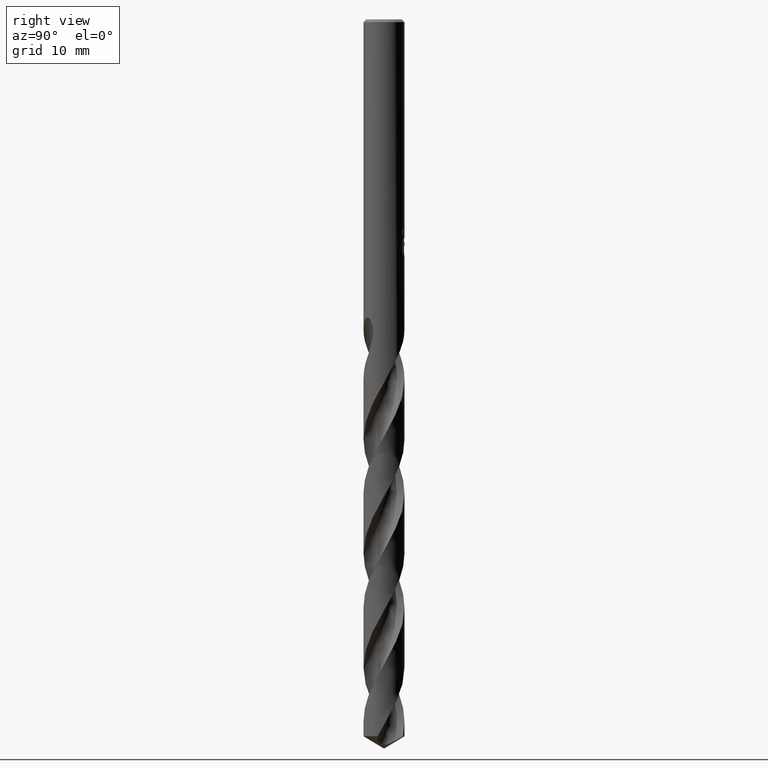
[diagram: clean part render]
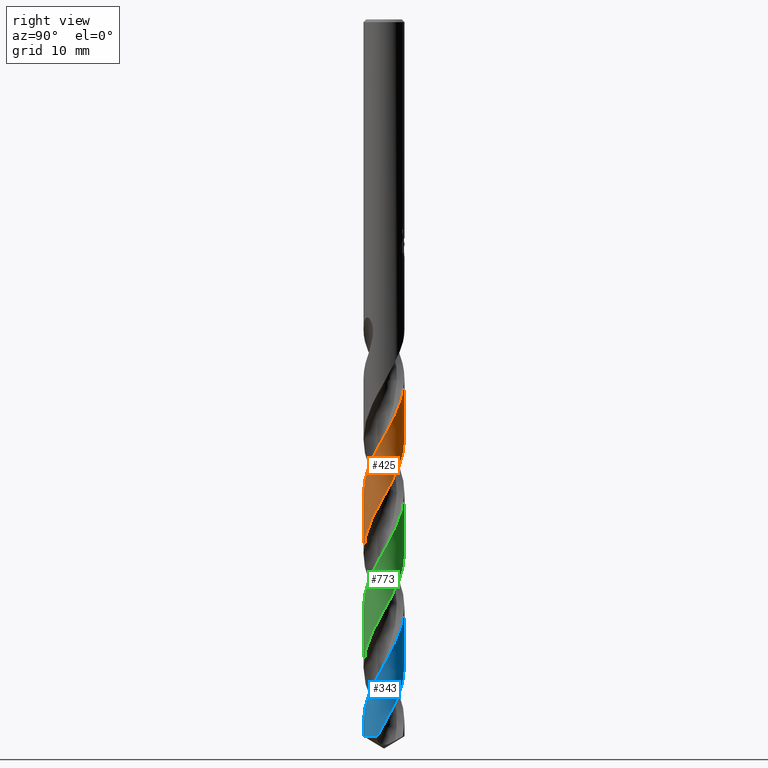
[diagram: same view with three faces highlighted in distinct colors, each labeled with its STEP entity id]
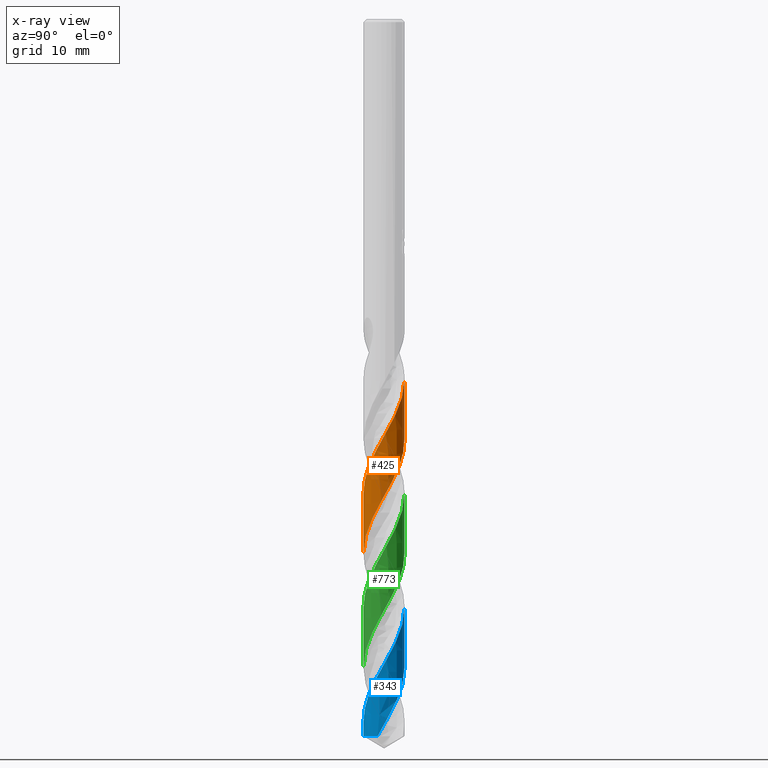
[diagram: x-ray of the same camera — body ghosted, the three highlighted faces saturated]
A machine part, right view with three faces highlighted in distinct colors.
The next image is the same camera in x-ray (body ghosted, the three faces saturated) — at least one of them is partly hidden behind the body in this view.
Their STEP definitions:

[orange] entity #425 — the highlighted conical surface has half-angle 0 deg.
#369=VERTEX_POINT('',#938);
#377=VERTEX_POINT('',#947);
#425=ADVANCED_FACE('',(#1000),#1001,.T.);
#523=VERTEX_POINT('',#1107);
#561=EDGE_CURVE('',#369,#377,#1146,.T.);
#583=EDGE_CURVE('',#751,#775,#1171,.T.);
#629=EDGE_CURVE('',#523,#837,#1220,.T.);
#743=EDGE_CURVE('',#523,#377,#1347,.T.);
#751=VERTEX_POINT('',#1355);
#757=EDGE_CURVE('',#775,#369,#1361,.T.);
#775=VERTEX_POINT('',#1382);
#829=EDGE_CURVE('',#751,#837,#1442,.T.);
#837=VERTEX_POINT('',#1450);
#938=CARTESIAN_POINT('',(0.0728294915093075,2.24872095483746,-39.605));
#947=CARTESIAN_POINT('',(-8.8014092150001E-014,-2.24993173351738,-51.9913240512082));
#1000=FACE_OUTER_BOUND('',#2777,.T.);
#1001=CONICAL_SURFACE('',#2778,2.24995,2.56094645322142E-006);
#1107=CARTESIAN_POINT('',(-1.86078440485266E-015,-2.24994862443339,-58.5868996756251));
#1146=B_SPLINE_CURVE_WITH_KNOTS('',3,(#5472,#5473,#5474,#5475,#5476,#5477,#5478,#5479,#5480,#5481,#5482,#5483,#5484,#5485,#5486,#5487,#5488,#5489,#5490,#5491,#5492,#5493,#5494,#5495,#5496,#5497,#5498,#5499,#5500,#5501,#5502,#5503,#5504,#5505,#5506,#5507,#5508,#5509,#5510,#5511,#5512,#5513,#5514,#5515,#5516,#5517,#5518,#5519,#5520,#5521,#5522,#5523,#5524,#5525,#5526,#5527,#5528,#5529,#5530,#5531,#5532,#5533,#5534,#5535,#5536,#5537,#5538,#5539,#5540,#5541,#5542,#5543,#5544,#5545,#5546,#5547,#5548,#5549,#5550,#5551,#5552,#5553,#5554,#5555,#5556,#5557,#5558,#5559,#5560,#5561,#5562,#5563,#5564,#5565,#5566,#5567,#5568,#5569,#5570,#5571,#5572,#5573,#5574,#5575,#5576,#5577,#5578,#5579,#5580,#5581,#5582,#5583,#5584,#5585,#5586,#5587,#5588,#5589,#5590,#5591,#5592,#5593,#5594,#5595,#5596,#5597),.UNSPECIFIED.,.F.,.F.,(4,2,2,2,2,2,2,2,2,2,2,2,2,2,2,2,2,2,2,2,2,2,2,2,2,2,2,2,2,2,2,2,2,2,2,2,2,2,2,2,2,2,2,2,2,2,2,2,2,2,2,2,2,2,2,2,2,2,2,2,2,2,4),(0.0,0.658729216683426,1.41215630054615,2.17567937553736,2.84104373492377,3.80100608845404,4.40122978906446,5.37153083314714,5.97004464820672,6.94667568292461,7.52898634840914,8.4924188350346,9.0990643242038,10.068798805186,10.6633012242142,11.6346131863277,12.2267375637196,13.1972037098199,13.7902881201795,14.7568783283559,15.3561964089543,16.3233246679527,16.9217910022944,17.8943225993414,18.4832218534276,19.4523312916974,20.0467742531556,21.0124747674605,21.6123982652126,22.5803802712467,23.1763179778044,24.1477217025157,24.737651852155,25.7065518982418,26.3002288338463,27.2645031282731,27.8660831357077,28.8353544798742,29.4279794417601,30.3979669183904,30.9894424762761,31.9581708478248,32.5510155003537,33.5140616612185,34.1169565080491,35.0872688382185,35.6770455312836,36.6462140089736,37.2382743126483,38.2050991342089,38.7995758145493,39.7652754990222,40.3653721562656,41.3329106961502,42.1895497462272,42.841056789572,43.821409718665,44.3129456911663,44.559120576954,44.6820168049159,44.7433357309734,44.7739500407802,44.8045339009492),.UNSPECIFIED.);
#1171=CIRCLE('',#5760,2.2499);
#1220=B_SPLINE_CURVE_WITH_KNOTS('',3,(#6409,#6410,#6411,#6412,#6413,#6414,#6415,#6416,#6417,#6418,#6419,#6420,#6421,#6422,#6423,#6424,#6425,#6426,#6427,#6428,#6429,#6430,#6431,#6432,#6433,#6434,#6435,#6436,#6437,#6438,#6439,#6440,#6441,#6442,#6443,#6444,#6445,#6446,#6447,#6448,#6449,#6450,#6451,#6452,#6453,#6454,#6455,#6456,#6457,#6458,#6459,#6460,#6461,#6462,#6463,#6464,#6465,#6466,#6467,#6468,#6469,#6470,#6471,#6472,#6473,#6474,#6475,#6476,#6477,#6478,#6479,#6480,#6481,#6482,#6483,#6484,#6485,#6486,#6487,#6488,#6489,#6490,#6491,#6492,#6493,#6494,#6495,#6496,#6497,#6498,#6499,#6500,#6501,#6502,#6503,#6504,#6505,#6506,#6507,#6508,#6509,#6510,#6511,#6512,#6513,#6514,#6515,#6516,#6517,#6518,#6519,#6520,#6521,#6522,#6523,#6524,#6525,#6526,#6527,#6528,#6529,#6530,#6531,#6532),.UNSPECIFIED.,.F.,.F.,(4,2,2,2,2,2,2,2,2,2,2,2,2,2,2,2,2,2,2,2,2,2,2,2,2,2,2,2,2,2,2,2,2,2,2,2,2,2,2,2,2,2,2,2,2,2,2,2,2,2,2,2,2,2,2,2,2,2,2,2,2,4),(0.0,0.0466261055672885,1.52303063559916,1.60058358218691,2.630456244664,3.44019373341575,4.20498012131632,4.97178479545146,5.73691612475028,6.50489864307532,7.27009664734627,8.03931752793195,8.80477975586422,9.57523530347814,10.3410236148287,11.1127098319767,11.8788525090644,12.6518370894737,13.4008077389436,13.7889663420783,14.1307576216393,15.4279138916359,15.583145457963,16.5835943804768,17.3578365488728,18.1275912882764,18.9031016096508,19.6731867016736,19.9999162676805,20.356805041322,21.6305118399056,21.957502544516,22.7370833152345,23.1276258777632,23.515166377853,24.8500792704919,24.9978690350612,26.1617746514953,26.9258048738281,27.7005070685229,28.4658907629098,29.2401229759259,30.0067751985739,30.7805558407156,31.5328451223028,32.422510234263,33.2224633181093,33.9981084960261,34.7587957887474,35.5335420936246,36.2955717095529,37.0695397490351,37.8330476487325,38.6064076253993,39.371370221219,40.0245333316545,41.1667926286067,42.0292404785394,42.0693860812059,43.3453316655265,43.9834485056916,44.6240352850066),.UNSPECIFIED.);
#1347=LINE('',#9343,#9344);
#1355=CARTESIAN_POINT('',(-2.75820242726763E-016,2.2499,-39.6));
#1361=B_SPLINE_CURVE_WITH_KNOTS('',3,(#9364,#9365,#9366,#9367),.UNSPECIFIED.,.F.,.F.,(4,4),(0.0,0.00715203030900988),.UNSPECIFIED.);
#1382=CARTESIAN_POINT('',(0.0700107695074428,2.24881046381259,-39.6));
#1442=LINE('',#12222,#12223);
#1450=CARTESIAN_POINT('',(1.49964241793175E-013,2.24991657320539,-46.0715157838122));
#2777=EDGE_LOOP('',(#12494,#12495,#12496,#12497,#12498,#12499));
#2778=AXIS2_PLACEMENT_3D('',#12500,#12501,#12502);
#5472=CARTESIAN_POINT('',(0.0725616041171575,2.24872961374875,-39.6045248001466));
#5473=CARTESIAN_POINT('',(0.180377583151536,2.24525111710368,-39.7957770226307));
#5474=CARTESIAN_POINT('',(0.287877009804448,2.23402098838829,-39.9867762426494));
#5475=CARTESIAN_POINT('',(0.515865047363587,2.19344636505256,-40.3965960046914));
#5476=CARTESIAN_POINT('',(0.635479525314473,2.16182266966221,-40.6146221229196));
#5477=CARTESIAN_POINT('',(0.869820577843305,2.07873522939792,-41.0549531519037));
#5478=CARTESIAN_POINT('',(0.984105927251652,2.0271361984193,-41.2762670774434));
#5479=CARTESIAN_POINT('',(1.18888274820632,1.91325289100747,-41.6909805122487));
#5480=CARTESIAN_POINT('',(1.28021588795633,1.85337852053011,-41.8836780857037));
#5481=CARTESIAN_POINT('',(1.49177778220335,1.69157533538663,-42.3555419592925));
#5482=CARTESIAN_POINT('',(1.60642348969177,1.58312283641452,-42.633662218565));
#5483=CARTESIAN_POINT('',(1.77287858262039,1.38877033751932,-43.0865152296651));
#5484=CARTESIAN_POINT('',(1.8319163653655,1.3099061877232,-43.2603892441844));
#5485=CARTESIAN_POINT('',(1.97236028724387,1.09416081563241,-43.716369110231));
#5486=CARTESIAN_POINT('',(2.04478457935508,0.951991395454111,-43.9975053235453));
#5487=CARTESIAN_POINT('',(2.13666472945223,0.711623320090198,-44.4529166075765));
#5488=CARTESIAN_POINT('',(2.16566525104682,0.617760251740461,-44.6263312174365));
#5489=CARTESIAN_POINT('',(2.22561004840765,0.366610290419393,-45.0837087482251));
#5490=CARTESIAN_POINT('',(2.24606582221964,0.207302027237066,-45.3666891030092));
#5491=CARTESIAN_POINT('',(2.2514231172873,-0.0483866121380456,-45.8192782722172));
#5492=CARTESIAN_POINT('',(2.24733931721512,-0.143887944365868,-45.9880250041173));
#5493=CARTESIAN_POINT('',(2.22044134194438,-0.395875923539248,-46.4369099172693));
#5494=CARTESIAN_POINT('',(2.18717623333664,-0.550796656685631,-46.7161277783956));
#5495=CARTESIAN_POINT('',(2.10691975776634,-0.795570563821809,-47.172003533946));
#5496=CARTESIAN_POINT('',(2.06968121767715,-0.887948531315885,-47.3477990991296));
#5497=CARTESIAN_POINT('',(1.95738478618018,-1.1207453930597,-47.8056336255936));
#5498=CARTESIAN_POINT('',(1.8732886348087,-1.25628653324111,-48.0866941158641));
#5499=CARTESIAN_POINT('',(1.71565080021317,-1.45883891987109,-48.5409228804987));
#5500=CARTESIAN_POINT('',(1.65081927633946,-1.53181407274516,-48.7132309693552));
#5501=CARTESIAN_POINT('',(1.4681889715162,-1.71229382510654,-49.16804636938));
#5502=CARTESIAN_POINT('',(1.34328337084161,-1.81194919417053,-49.4495912268198));
#5503=CARTESIAN_POINT('',(1.12689820767733,-1.94979767500648,-49.9036361509604));
#5504=CARTESIAN_POINT('',(1.04168133650932,-1.99662231461814,-50.0752755844543));
#5505=CARTESIAN_POINT('',(0.80958081413261,-2.10525185886974,-50.5292024893895));
#5506=CARTESIAN_POINT('',(0.658620114206539,-2.15725913353913,-50.8105333265225));
#5507=CARTESIAN_POINT('',(0.408513590450368,-2.21467282222801,-51.2646596760097));
#5508=CARTESIAN_POINT('',(0.312366274114281,-2.23026375936307,-51.4365938676157));
#5509=CARTESIAN_POINT('',(0.0577283131816032,-2.25477125507673,-51.8897223248734));
#5510=CARTESIAN_POINT('',(-0.101308663010068,-2.25324269965436,-52.1699684341404));
#5511=CARTESIAN_POINT('',(-0.356626887602766,-2.22366684412273,-52.6248301550543));
#5512=CARTESIAN_POINT('',(-0.453459781957313,-2.20595579518053,-52.798584300027));
#5513=CARTESIAN_POINT('',(-0.702650414425726,-2.14328187115279,-53.2537312100448));
#5514=CARTESIAN_POINT('',(-0.852040337677841,-2.08840665092015,-53.5341636739514));
#5515=CARTESIAN_POINT('',(-1.08257548420254,-1.97481582016993,-53.9889850069039));
#5516=CARTESIAN_POINT('',(-1.1677285001702,-1.92568616675285,-54.162513548174));
#5517=CARTESIAN_POINT('',(-1.38206729005832,-1.78257340621743,-54.6190330543731));
#5518=CARTESIAN_POINT('',(-1.50500948005022,-1.68007911473466,-54.9010498880004));
#5519=CARTESIAN_POINT('',(-1.68336422406238,-1.49594918558754,-55.3547088754191));
#5520=CARTESIAN_POINT('',(-1.74606012192154,-1.42226697536994,-55.525490270094));
#5521=CARTESIAN_POINT('',(-1.89884991335095,-1.21732899525976,-55.9782825471605));
#5522=CARTESIAN_POINT('',(-1.98014577820586,-1.08008532755434,-56.2593442610263));
#5523=CARTESIAN_POINT('',(-2.08687486854363,-0.846597294794362,-56.7136686359319));
#5524=CARTESIAN_POINT('',(-2.12161775101764,-0.755315703057452,-56.8860698191398));
#5525=CARTESIAN_POINT('',(-2.19695333723943,-0.510647275883014,-57.3395316765166));
#5526=CARTESIAN_POINT('',(-2.2274732611044,-0.354637182582126,-57.6196428155253));
#5527=CARTESIAN_POINT('',(-2.24994661412044,-0.0985296085722693,-58.0746199903154));
#5528=CARTESIAN_POINT('',(-2.25210070805484,2.91763177641541E-005,-58.2486247332406));
#5529=CARTESIAN_POINT('',(-2.24085041363748,0.257086833794062,-58.7043938344398));
#5530=CARTESIAN_POINT('',(-2.21711364650659,0.414670753674939,-58.9851929195306));
#5531=CARTESIAN_POINT('',(-2.15222060020359,0.663176890315572,-59.4397248217549));
#5532=CARTESIAN_POINT('',(-2.1213505090899,0.756121059152177,-59.6125973644456));
#5533=CARTESIAN_POINT('',(-2.02454311995071,0.994449267055882,-60.0682520770398));
#5534=CARTESIAN_POINT('',(-1.94898810064619,1.13542541543136,-60.3500659507116));
#5535=CARTESIAN_POINT('',(-1.80454929512098,1.34732503139768,-60.8038939911716));
#5536=CARTESIAN_POINT('',(-1.74488108706083,1.42374965560916,-60.975047423859));
#5537=CARTESIAN_POINT('',(-1.57474288526644,1.61486220122432,-61.4282752160692));
#5538=CARTESIAN_POINT('',(-1.45665142587791,1.7221505356175,-61.7093976339536));
#5539=CARTESIAN_POINT('',(-1.24946846215236,1.87367257605376,-62.1636357495849));
#5540=CARTESIAN_POINT('',(-1.1671232326944,1.9260409421181,-62.3358898539432));
#5541=CARTESIAN_POINT('',(-0.942861207830124,2.04899684948528,-62.7889114794521));
#5542=CARTESIAN_POINT('',(-0.79635625260483,2.11026821379104,-63.068733123193));
#5543=CARTESIAN_POINT('',(-0.549896864220283,2.18396573047708,-63.5239755579438));
#5544=CARTESIAN_POINT('',(-0.453484013234582,2.20599973263263,-63.6985351273465));
#5545=CARTESIAN_POINT('',(-0.198831827614817,2.2468027148946,-64.1553592665984));
#5546=CARTESIAN_POINT('',(-0.0394095225320534,2.25524816704748,-64.4366505592424));
#5547=CARTESIAN_POINT('',(0.216848246440145,2.241606334158,-64.8907912115724));
#5548=CARTESIAN_POINT('',(0.313603865382297,2.23012662739687,-65.0627802772143));
#5549=CARTESIAN_POINT('',(0.565899745351309,2.18345433463676,-65.517257380583));
#5550=CARTESIAN_POINT('',(0.719057759273903,2.13792245217571,-65.798785043724));
#5551=CARTESIAN_POINT('',(0.95586293114678,2.03914916549152,-66.2528480391804));
#5552=CARTESIAN_POINT('',(1.04301151829464,1.99597604619023,-66.4245226371861));
#5553=CARTESIAN_POINT('',(1.26476010448375,1.86763302891403,-66.878346933562));
#5554=CARTESIAN_POINT('',(1.39366036066885,1.77353399732932,-67.1595409526249));
#5555=CARTESIAN_POINT('',(1.58374751837279,1.60112731988012,-67.613684393066));
#5556=CARTESIAN_POINT('',(1.65155862081756,1.5310809931595,-67.7857721498767));
#5557=CARTESIAN_POINT('',(1.81701887875681,1.33635278534053,-68.2383914500111));
#5558=CARTESIAN_POINT('',(1.90647972218574,1.20530957027929,-68.5179803368932));
#5559=CARTESIAN_POINT('',(2.02840859406293,0.978654994074317,-68.9734463650645));
#5560=CARTESIAN_POINT('',(2.06951865443974,0.888419504441049,-69.1484623168753));
#5561=CARTESIAN_POINT('',(2.16091353217151,0.646721571280063,-69.6061706590449));
#5562=CARTESIAN_POINT('',(2.20130745646029,0.492019039537635,-69.8878830068277));
#5563=CARTESIAN_POINT('',(2.23940936929813,0.238428230384075,-70.3416949088967));
#5564=CARTESIAN_POINT('',(2.24759755319718,0.141766406307667,-70.512934126796));
#5565=CARTESIAN_POINT('',(2.25270949468994,-0.114270278239715,-70.9665413907686));
#5566=CARTESIAN_POINT('',(2.23898471455212,-0.273397513670801,-71.247954526788));
#5567=CARTESIAN_POINT('',(2.18996030598664,-0.52532556745411,-71.7021467604473));
#5568=CARTESIAN_POINT('',(2.1651968775206,-0.61952052627933,-71.8740648884404));
#5569=CARTESIAN_POINT('',(2.08417692565506,-0.862475191086693,-72.3277027213556));
#5570=CARTESIAN_POINT('',(2.0180917127935,-1.00747380355474,-72.6084691745756));
#5571=CARTESIAN_POINT('',(1.88753819964618,-1.22849013005321,-73.0627310080037));
#5572=CARTESIAN_POINT('',(1.83241791097095,-1.30928337869587,-73.235364927186));
#5573=CARTESIAN_POINT('',(1.67448239522752,-1.51120089472449,-73.6894283987623));
#5574=CARTESIAN_POINT('',(1.56373881550535,-1.62553988507949,-73.9699049411228));
#5575=CARTESIAN_POINT('',(1.36609241309996,-1.79052474797414,-74.4255282117763));
#5576=CARTESIAN_POINT('',(1.28629498952283,-1.84868127134492,-74.5998146397695));
#5577=CARTESIAN_POINT('',(1.06860602063671,-1.98640813949218,-75.0560991707117));
#5578=CARTESIAN_POINT('',(0.92555922689788,-2.05696841507305,-75.3371232727508));
#5579=CARTESIAN_POINT('',(0.643987281906816,-2.16046160553508,-75.8679777490585));
#5580=CARTESIAN_POINT('',(0.507549403178618,-2.19651391680463,-76.1166594654619));
#5581=CARTESIAN_POINT('',(0.263113436359641,-2.23711981833553,-76.5556917124938));
#5582=CARTESIAN_POINT('',(0.15636249855931,-2.24711010740913,-76.7451246523096));
#5583=CARTESIAN_POINT('',(-0.111885110806746,-2.25298638735443,-77.2200607148165));
#5584=CARTESIAN_POINT('',(-0.272942100916709,-2.23918804564039,-77.5045595632765));
#5585=CARTESIAN_POINT('',(-0.510427696571033,-2.19282575975314,-77.9329610007357));
#5586=CARTESIAN_POINT('',(-0.588867892359716,-2.17307741849586,-78.0758988303018));
#5587=CARTESIAN_POINT('',(-0.704777251183396,-2.13715340732523,-78.2905707789464));
#5588=CARTESIAN_POINT('',(-0.743126734072237,-2.12412319145909,-78.3621857160388));
#5589=CARTESIAN_POINT('',(-0.800064226201124,-2.10304633727353,-78.4695822488));
#5590=CARTESIAN_POINT('',(-0.818927245826059,-2.09577316330323,-78.5053417261795));
#5591=CARTESIAN_POINT('',(-0.847049657077799,-2.08449216358481,-78.5589486068386));
#5592=CARTESIAN_POINT('',(-0.856384838590492,-2.08067438484593,-78.5767924024386));
#5593=CARTESIAN_POINT('',(-0.870341103471998,-2.07485691144027,-78.6035459367235));
#5594=CARTESIAN_POINT('',(-0.874981966806588,-2.07290412145318,-78.6124550586006));
#5595=CARTESIAN_POINT('',(-0.884245618840597,-2.06896949696645,-78.6302647079803));
#5596=CARTESIAN_POINT('',(-0.888868242462833,-2.06698776694846,-78.6391645280433));
#5597=CARTESIAN_POINT('',(-0.893483086900748,-2.06499103470749,-78.648063607188));
#5760=AXIS2_PLACEMENT_3D('',#12674,#12675,#12676);
#6409=CARTESIAN_POINT('',(2.13356564105792,-0.714421203000789,-78.648063607188));
#6410=CARTESIAN_POINT('',(2.13597707288747,-0.707219532318833,-78.6345035262981));
#6411=CARTESIAN_POINT('',(2.13836599834528,-0.699964201339924,-78.6208663616761));
#6412=CARTESIAN_POINT('',(2.21582415293199,-0.460559414221809,-78.171889415537));
#6413=CARTESIAN_POINT('',(2.25276005697096,-0.217647155177345,-77.7457790248743));
#6414=CARTESIAN_POINT('',(2.24968224635138,0.0397385206539078,-77.2887371550449));
#6415=CARTESIAN_POINT('',(2.24941900646631,0.0525675484141838,-77.2659354401323));
#6416=CARTESIAN_POINT('',(2.24408327465212,0.235993627148386,-76.9401145815292));
#6417=CARTESIAN_POINT('',(2.21972971047913,0.405671180483948,-76.6399065884255));
#6418=CARTESIAN_POINT('',(2.14211517453889,0.701371052317301,-76.0994202063407));
#6419=CARTESIAN_POINT('',(2.09639793222338,0.828024483140251,-75.8605455855159));
#6420=CARTESIAN_POINT('',(1.98614649246037,1.06479020917998,-75.3979563795893));
#6421=CARTESIAN_POINT('',(1.92293801880878,1.17511715896917,-75.1744854535025));
#6422=CARTESIAN_POINT('',(1.77828590064576,1.38433026645557,-74.7247563919534));
#6423=CARTESIAN_POINT('',(1.69720583538701,1.48259964041486,-74.4987164272722));
#6424=CARTESIAN_POINT('',(1.51961704320246,1.66412071660317,-74.0489109737997));
#6425=CARTESIAN_POINT('',(1.42336511359442,1.7471698879127,-73.8254589026387));
#6426=CARTESIAN_POINT('',(1.21734657567569,1.89651085023736,-73.3755642682217));
#6427=CARTESIAN_POINT('',(1.10811900895505,1.96231718008816,-73.1493308929748));
#6428=CARTESIAN_POINT('',(0.880304532799659,2.07450188792662,-72.6994543498037));
#6429=CARTESIAN_POINT('',(0.762003053833499,2.1208229232099,-72.476133876225));
#6430=CARTESIAN_POINT('',(0.51801235888827,2.1932547431314,-72.0261859216112));
#6431=CARTESIAN_POINT('',(0.392998574484941,2.21904858328364,-71.7997787381613));
#6432=CARTESIAN_POINT('',(0.140824293514901,2.24913980540844,-71.3498015030404));
#6433=CARTESIAN_POINT('',(0.0139111861121134,2.2535122607082,-71.1265714200856));
#6434=CARTESIAN_POINT('',(-0.240349739743012,2.24074731982133,-70.6765497577273));
#6435=CARTESIAN_POINT('',(-0.366942251009118,2.22350673831747,-70.4499891018574));
#6436=CARTESIAN_POINT('',(-0.614784830728546,2.16805611039287,-69.9999353242463));
#6437=CARTESIAN_POINT('',(-0.735876658234565,2.13001597311322,-69.7767997551927));
#6438=CARTESIAN_POINT('',(-0.971485502953687,2.03345566655858,-69.326727980997));
#6439=CARTESIAN_POINT('',(-1.08523541098659,1.97506777066149,-69.1000362176007));
#6440=CARTESIAN_POINT('',(-1.30052552409207,1.84038699796611,-68.649944463667));
#6441=CARTESIAN_POINT('',(-1.40202867659697,1.76430350803553,-68.4269176502059));
#6442=CARTESIAN_POINT('',(-1.5921738175317,1.59490341768532,-67.976815377953));
#6443=CARTESIAN_POINT('',(-1.68011019247138,1.50195112919019,-67.7500017182522));
#6444=CARTESIAN_POINT('',(-1.83654903345821,1.30564765872047,-67.3050288772386));
#6445=CARTESIAN_POINT('',(-1.90552773172232,1.20277079464298,-67.0871811218855));
#6446=CARTESIAN_POINT('',(-1.99697028569423,1.03855150225748,-66.7550174082803));
#6447=CARTESIAN_POINT('',(-2.02572992933102,0.98126157106241,-66.6417465803431));
#6448=CARTESIAN_POINT('',(-2.07508751881499,0.871519125832286,-66.4283378760446));
#6449=CARTESIAN_POINT('',(-2.09622983835876,0.819359253875499,-66.3282033315702));
#6450=CARTESIAN_POINT('',(-2.18820927518726,0.565479459518504,-65.8491120757691));
#6451=CARTESIAN_POINT('',(-2.23196155369882,0.355348876487865,-65.4755489333276));
#6452=CARTESIAN_POINT('',(-2.24707716801505,0.116791347202708,-65.0511031236475));
#6453=CARTESIAN_POINT('',(-2.24825618739296,0.0913105014553892,-65.0057226336637));
#6454=CARTESIAN_POINT('',(-2.25381031152081,-0.098519636718732,-64.6683072551502));
#6455=CARTESIAN_POINT('',(-2.24060519087953,-0.263135951107882,-64.3788192781073));
#6456=CARTESIAN_POINT('',(-2.18530711398945,-0.550511387010957,-63.8614884716938));
#6457=CARTESIAN_POINT('',(-2.15058939349651,-0.673430705013908,-63.6349663857866));
#6458=CARTESIAN_POINT('',(-2.06112686017562,-0.911102133960918,-63.1849449251297));
#6459=CARTESIAN_POINT('',(-2.00656960540012,-1.02571111976852,-62.9617965629973));
#6460=CARTESIAN_POINT('',(-1.87810719395805,-1.24553382673321,-62.5117434416694));
#6461=CARTESIAN_POINT('',(-1.80444356418099,-1.35001080052555,-62.2850790634886));
#6462=CARTESIAN_POINT('',(-1.64106780986988,-1.54441271970944,-61.8350099244914));
#6463=CARTESIAN_POINT('',(-1.55157041482641,-1.63432045014788,-61.611972706538));
#6464=CARTESIAN_POINT('',(-1.41384096827592,-1.75107012024469,-61.2928464904085));
#6465=CARTESIAN_POINT('',(-1.37162587440386,-1.78432648009713,-61.1978430026435));
#6466=CARTESIAN_POINT('',(-1.28100288044179,-1.8506117919409,-60.9987932632681));
#6467=CARTESIAN_POINT('',(-1.23243569220689,-1.88330114501907,-60.894646032868));
#6468=CARTESIAN_POINT('',(-1.00494608766055,-2.02385891156572,-60.4201156415689));
#6469=CARTESIAN_POINT('',(-0.812903576109539,-2.10833291967349,-60.0547051015311));
#6470=CARTESIAN_POINT('',(-0.560401963249512,-2.17970254081487,-59.589095978218));
#6471=CARTESIAN_POINT('',(-0.508368739542821,-2.19242302467257,-59.4937983223926));
#6472=CARTESIAN_POINT('',(-0.330579154785765,-2.22920450808144,-59.1717550953411));
#6473=CARTESIAN_POINT('',(-0.203185888197144,-2.24442386272473,-58.9461272955124));
#6474=CARTESIAN_POINT('',(-0.0107825970435421,-2.25084010139822,-58.6059621185497));
#6475=CARTESIAN_POINT('',(0.0534163048034463,-2.25022714178282,-58.4925448452274));
#6476=CARTESIAN_POINT('',(0.180933309540298,-2.24356259344336,-58.2661678350427));
#6477=CARTESIAN_POINT('',(0.244181358447918,-2.23756048128309,-58.1531408291782));
#6478=CARTESIAN_POINT('',(0.523956371854152,-2.19900765449954,-57.6521379761302));
#6479=CARTESIAN_POINT('',(0.735028269543249,-2.13769107199823,-57.2698764872467));
#6480=CARTESIAN_POINT('',(0.955814406469818,-2.03697142460339,-56.8386161401294));
#6481=CARTESIAN_POINT('',(0.977653704728292,-2.02658082686662,-56.7955966460188));
#6482=CARTESIAN_POINT('',(1.17054712709929,-1.93094789743366,-56.4132519362349));
#6483=CARTESIAN_POINT('',(1.33031766517366,-1.82458761772635,-56.0780438509067));
#6484=CARTESIAN_POINT('',(1.56971567705655,-1.61678948461062,-55.5167239067402));
#6485=CARTESIAN_POINT('',(1.6575261518748,-1.52664790779665,-55.2933681591637));
#6486=CARTESIAN_POINT('',(1.81845013419937,-1.33106184825117,-54.845315583003));
#6487=CARTESIAN_POINT('',(1.8909294055259,-1.22590736141952,-54.6209088198693));
#6488=CARTESIAN_POINT('',(2.01650053086788,-1.00588020458041,-54.1724256421656));
#6489=CARTESIAN_POINT('',(2.06960135498892,-0.891536275441972,-53.9486354016206));
#6490=CARTESIAN_POINT('',(2.15669207632407,-0.653551769060377,-53.5002634448192));
#6491=CARTESIAN_POINT('',(2.19023062859374,-0.530400705553036,-53.2759870212329));
#6492=CARTESIAN_POINT('',(2.23587646106483,-0.281016377816701,-52.8272483250641));
#6493=CARTESIAN_POINT('',(2.24810782792538,-0.155337824481077,-52.6030791940095));
#6494=CARTESIAN_POINT('',(2.25139441099909,0.0981533885576738,-52.1544614337645));
#6495=CARTESIAN_POINT('',(2.24223269859519,0.225381338777609,-51.9303156709527));
#6496=CARTESIAN_POINT('',(2.20303959216081,0.473421161890867,-51.485925647594));
#6497=CARTESIAN_POINT('',(2.17369187029939,0.593771100272681,-51.2659793785639));
#6498=CARTESIAN_POINT('',(2.08830955148082,0.850036845408453,-50.7878469025927));
#6499=CARTESIAN_POINT('',(2.02862635273907,0.98399525118034,-50.530592038733));
#6500=CARTESIAN_POINT('',(1.8914293623223,1.22554617097532,-50.0385856362326));
#6501=CARTESIAN_POINT('',(1.81653263162121,1.33406748776726,-49.8047028734714));
#6502=CARTESIAN_POINT('',(1.65095948547999,1.53388897957164,-49.3458152572885));
#6503=CARTESIAN_POINT('',(1.56127377543103,1.62507167641074,-49.1210778976765));
#6504=CARTESIAN_POINT('',(1.36944326917613,1.7895340484966,-48.6734693201687));
#6505=CARTESIAN_POINT('',(1.26776932687369,1.862961070455,-48.4509334412707));
#6506=CARTESIAN_POINT('',(1.05100948610617,1.9934450149843,-48.0034701635698));
#6507=CARTESIAN_POINT('',(0.936287735101574,2.04982198736542,-47.778860115501));
#6508=CARTESIAN_POINT('',(0.700632781722603,2.14172454395059,-47.3308955256373));
#6509=CARTESIAN_POINT('',(0.580152291938146,2.17746029833042,-47.1078536922054));
#6510=CARTESIAN_POINT('',(0.332280604261096,2.22889940968004,-46.6600452931501));
#6511=CARTESIAN_POINT('',(0.205447167991261,2.24414030983781,-46.4355736943046));
#6512=CARTESIAN_POINT('',(-0.0475934032158873,2.25292428285902,-45.9872737437107));
#6513=CARTESIAN_POINT('',(-0.173372854509701,2.24675331904837,-45.7637386918276));
#6514=CARTESIAN_POINT('',(-0.424458060508603,2.21318778633413,-45.3155773749886));
#6515=CARTESIAN_POINT('',(-0.549115464771952,2.18559321448081,-45.0912354244968));
#6516=CARTESIAN_POINT('',(-0.791019839458185,2.11004202378183,-44.6426343329933));
#6517=CARTESIAN_POINT('',(-0.907879613589606,2.0624634291164,-44.4186591810083));
#6518=CARTESIAN_POINT('',(-1.1161940543182,1.95647647249494,-44.0050932815156));
#6519=CARTESIAN_POINT('',(-1.20853194421172,1.90082841841712,-43.8153444095928));
#6520=CARTESIAN_POINT('',(-1.45048147323191,1.73022294663034,-43.2918774936028));
#6521=CARTESIAN_POINT('',(-1.59015230842921,1.60281486574216,-42.9578576101468));
#6522=CARTESIAN_POINT('',(-1.80467504854642,1.35110109196218,-42.3735096456022));
#6523=CARTESIAN_POINT('',(-1.88626433405599,1.23455935680271,-42.1236767503233));
#6524=CARTESIAN_POINT('',(-1.9594700002714,1.10571100165352,-41.8601831864307));
#6525=CARTESIAN_POINT('',(-1.96269697409438,1.09997274039804,-41.8484724725061));
#6526=CARTESIAN_POINT('',(-2.06787597822871,0.911001264885294,-41.4639442919001));
#6527=CARTESIAN_POINT('',(-2.14384293169812,0.714271850475041,-41.0962506837808));
#6528=CARTESIAN_POINT('',(-2.21525040524066,0.407156398775471,-40.5378741451452));
#6529=CARTESIAN_POINT('',(-2.23185801946747,0.303226230218844,-40.3510269279096));
#6530=CARTESIAN_POINT('',(-2.25045398264132,0.0931389316773641,-39.9779391324187));
#6531=CARTESIAN_POINT('',(-2.25234543035742,-0.0126376780765218,-39.7918025392972));
#6532=CARTESIAN_POINT('',(-2.24679470034184,-0.118167852299402,-39.6049290579384));
#9343=CARTESIAN_POINT('',(2.75234247398E-016,-2.24995,-59.124031803594));
#9344=VECTOR('',#12839,1.0);
#9364=CARTESIAN_POINT('',(0.0700107695074403,2.24881046381259,-39.6));
#9365=CARTESIAN_POINT('',(0.0711813971034429,2.24877402473706,-39.6020764891997));
#9366=CARTESIAN_POINT('',(0.0723520005518658,2.24873667146507,-39.604152975757));
#9367=CARTESIAN_POINT('',(0.0735225787930323,2.24869840400938,-39.6062294598715));
#12222=CARTESIAN_POINT('',(-2.75826365758532E-016,2.24995,-59.124031803594));
#12223=VECTOR('',#12950,1.0);
#12494=ORIENTED_EDGE('',*,*,#829,.F.);
#12495=ORIENTED_EDGE('',*,*,#583,.T.);
#12496=ORIENTED_EDGE('',*,*,#757,.T.);
#12497=ORIENTED_EDGE('',*,*,#561,.T.);
#12498=ORIENTED_EDGE('',*,*,#743,.F.);
#12499=ORIENTED_EDGE('',*,*,#629,.T.);
#12500=CARTESIAN_POINT('',(0.0,0.0,-59.124031803594));
#12501=DIRECTION('',(0.0,-0.0,-1.0));
#12502=DIRECTION('',(0.0,1.0,0.0));
#12674=CARTESIAN_POINT('',(0.0,0.0,-39.6));
#12675=DIRECTION('',(0.0,0.0,-1.0));
#12676=DIRECTION('',(0.0,1.0,0.0));
#12839=DIRECTION('',(-3.1361512984104E-022,2.56094645321862E-006,0.999999999996721));
#12950=DIRECTION('',(-3.1361512984104E-022,2.56094645321862E-006,-0.999999999996721));

[blue] entity #343 — the highlighted conical surface has half-angle 0 deg.
#331=EDGE_CURVE('',#761,#711,#895,.T.);
#343=ADVANCED_FACE('',(#908),#909,.T.);
#449=VERTEX_POINT('',#1027);
#459=EDGE_CURVE('',#543,#711,#1038,.T.);
#543=VERTEX_POINT('',#1128);
#679=EDGE_CURVE('',#761,#709,#1276,.T.);
#709=VERTEX_POINT('',#1309);
#711=VERTEX_POINT('',#1311);
#761=VERTEX_POINT('',#1365);
#777=EDGE_CURVE('',#449,#543,#1384,.T.);
#831=EDGE_CURVE('',#449,#709,#1444,.T.);
#895=B_SPLINE_CURVE_WITH_KNOTS('',3,(#1909,#1910,#1911,#1912,#1913,#1914,#1915,#1916,#1917,#1918,#1919,#1920,#1921,#1922,#1923,#1924,#1925,#1926,#1927,#1928,#1929,#1930,#1931,#1932,#1933,#1934,#1935,#1936,#1937,#1938,#1939,#1940,#1941,#1942,#1943,#1944,#1945,#1946,#1947,#1948,#1949,#1950,#1951,#1952,#1953,#1954,#1955,#1956,#1957,#1958,#1959,#1960,#1961,#1962,#1963,#1964,#1965,#1966,#1967,#1968,#1969,#1970,#1971,#1972,#1973,#1974,#1975,#1976,#1977,#1978,#1979,#1980,#1981,#1982,#1983,#1984,#1985,#1986,#1987,#1988,#1989,#1990,#1991,#1992,#1993,#1994,#1995,#1996,#1997,#1998,#1999,#2000,#2001,#2002,#2003,#2004,#2005,#2006,#2007,#2008,#2009,#2010,#2011,#2012,#2013,#2014,#2015,#2016,#2017,#2018,#2019,#2020,#2021,#2022,#2023,#2024,#2025,#2026,#2027,#2028,#2029,#2030,#2031,#2032,#2033,#2034),.UNSPECIFIED.,.F.,.F.,(4,2,2,2,2,2,2,2,2,2,2,2,2,2,2,2,2,2,2,2,2,2,2,2,2,2,2,2,2,2,2,2,2,2,2,2,2,2,2,2,2,2,2,2,2,2,2,2,2,2,2,2,2,2,2,2,2,2,2,2,2,2,4),(0.0,0.658729216683426,1.41215630054615,2.17567937553736,2.84104373492377,3.80100608845404,4.40122978906446,5.37153083314714,5.97004464820672,6.94667568292461,7.52898634840914,8.4924188350346,9.0990643242038,10.068798805186,10.6633012242142,11.6346131863277,12.2267375637196,13.1972037098199,13.7902881201795,14.7568783283559,15.3561964089543,16.3233246679527,16.9217910022944,17.8943225993414,18.4832218534276,19.4523312916974,20.0467742531556,21.0124747674605,21.6123982652126,22.5803802712467,23.1763179778044,24.1477217025157,24.737651852155,25.7065518982418,26.3002288338463,27.2645031282731,27.8660831357077,28.8353544798742,29.4279794417601,30.3979669183904,30.9894424762761,31.9581708478248,32.5510155003537,33.5140616612185,34.1169565080491,35.0872688382185,35.6770455312836,36.6462140089736,37.2382743126483,38.2050991342089,38.7995758145493,39.7652754990222,40.3653721562656,41.3329106961502,42.1895497462272,42.841056789572,43.821409718665,44.3129456911663,44.559120576954,44.6820168049159,44.7433357309734,44.7739500407802,44.8045339009492),.UNSPECIFIED.);
#908=FACE_OUTER_BOUND('',#2070,.T.);
#909=CONICAL_SURFACE('',#2071,2.24995,2.56094645322142E-006);
#1027=CARTESIAN_POINT('',(2.13356564105792,-0.714421203000797,-78.648063607188));
#1038=LINE('',#3763,#3764);
#1128=CARTESIAN_POINT('',(2.75536429610035E-016,-2.25,-78.648063607188));
#1276=LINE('',#7975,#7976);
#1309=CARTESIAN_POINT('',(-1.21283237270191E-014,2.24998067415239,-71.1016943382078));
#1311=CARTESIAN_POINT('',(1.19059839912541E-014,-2.24999583560088,-77.0219463895526));
#1365=CARTESIAN_POINT('',(1.4174858852018E-013,2.24996378460406,-64.5066527668295));
#1384=CIRCLE('',#9592,2.25);
#1444=B_SPLINE_CURVE_WITH_KNOTS('',3,(#12226,#12227,#12228,#12229,#12230,#12231,#12232,#12233,#12234,#12235,#12236,#12237,#12238,#12239,#12240,#12241,#12242,#12243,#12244,#12245,#12246,#12247,#12248,#12249,#12250,#12251,#12252,#12253,#12254,#12255,#12256,#12257,#12258,#12259,#12260,#12261,#12262,#12263,#12264,#12265,#12266,#12267,#12268,#12269,#12270,#12271,#12272,#12273,#12274,#12275,#12276,#12277,#12278,#12279,#12280,#12281,#12282,#12283,#12284,#12285,#12286,#12287,#12288,#12289,#12290,#12291,#12292,#12293,#12294,#12295,#12296,#12297,#12298,#12299,#12300,#12301,#12302,#12303,#12304,#12305,#12306,#12307,#12308,#12309,#12310,#12311,#12312,#12313,#12314,#12315,#12316,#12317,#12318,#12319,#12320,#12321,#12322,#12323,#12324,#12325,#12326,#12327,#12328,#12329,#12330,#12331,#12332,#12333,#12334,#12335,#12336,#12337,#12338,#12339,#12340,#12341,#12342,#12343,#12344,#12345,#12346,#12347,#12348,#12349),.UNSPECIFIED.,.F.,.F.,(4,2,2,2,2,2,2,2,2,2,2,2,2,2,2,2,2,2,2,2,2,2,2,2,2,2,2,2,2,2,2,2,2,2,2,2,2,2,2,2,2,2,2,2,2,2,2,2,2,2,2,2,2,2,2,2,2,2,2,2,2,4),(0.0,0.0466261055672885,1.52303063559916,1.60058358218691,2.630456244664,3.44019373341575,4.20498012131632,4.97178479545146,5.73691612475028,6.50489864307532,7.27009664734627,8.03931752793195,8.80477975586422,9.57523530347814,10.3410236148287,11.1127098319767,11.8788525090644,12.6518370894737,13.4008077389436,13.7889663420783,14.1307576216393,15.4279138916359,15.583145457963,16.5835943804768,17.3578365488728,18.1275912882764,18.9031016096508,19.6731867016736,19.9999162676805,20.356805041322,21.6305118399056,21.957502544516,22.7370833152345,23.1276258777632,23.515166377853,24.8500792704919,24.9978690350612,26.1617746514953,26.9258048738281,27.7005070685229,28.4658907629098,29.2401229759259,30.0067751985739,30.7805558407156,31.5328451223028,32.422510234263,33.2224633181093,33.9981084960261,34.7587957887474,35.5335420936246,36.2955717095529,37.0695397490351,37.8330476487325,38.6064076253993,39.371370221219,40.0245333316545,41.1667926286067,42.0292404785394,42.0693860812059,43.3453316655265,43.9834485056916,44.6240352850066),.UNSPECIFIED.);
#1909=CARTESIAN_POINT('',(0.0725616041171575,2.24872961374875,-39.6045248001466));
#1910=CARTESIAN_POINT('',(0.180377583151536,2.24525111710368,-39.7957770226307));
#1911=CARTESIAN_POINT('',(0.287877009804448,2.23402098838829,-39.9867762426494));
#1912=CARTESIAN_POINT('',(0.515865047363587,2.19344636505256,-40.3965960046914));
#1913=CARTESIAN_POINT('',(0.635479525314473,2.16182266966221,-40.6146221229196));
#1914=CARTESIAN_POINT('',(0.869820577843305,2.07873522939792,-41.0549531519037));
#1915=CARTESIAN_POINT('',(0.984105927251652,2.0271361984193,-41.2762670774434));
#1916=CARTESIAN_POINT('',(1.18888274820632,1.91325289100747,-41.6909805122487));
#1917=CARTESIAN_POINT('',(1.28021588795633,1.85337852053011,-41.8836780857037));
#1918=CARTESIAN_POINT('',(1.49177778220335,1.69157533538663,-42.3555419592925));
#1919=CARTESIAN_POINT('',(1.60642348969177,1.58312283641452,-42.633662218565));
#1920=CARTESIAN_POINT('',(1.77287858262039,1.38877033751932,-43.0865152296651));
#1921=CARTESIAN_POINT('',(1.8319163653655,1.3099061877232,-43.2603892441844));
#1922=CARTESIAN_POINT('',(1.97236028724387,1.09416081563241,-43.716369110231));
#1923=CARTESIAN_POINT('',(2.04478457935508,0.951991395454111,-43.9975053235453));
#1924=CARTESIAN_POINT('',(2.13666472945223,0.711623320090198,-44.4529166075765));
#1925=CARTESIAN_POINT('',(2.16566525104682,0.617760251740461,-44.6263312174365));
#1926=CARTESIAN_POINT('',(2.22561004840765,0.366610290419393,-45.0837087482251));
#1927=CARTESIAN_POINT('',(2.24606582221964,0.207302027237066,-45.3666891030092));
#1928=CARTESIAN_POINT('',(2.2514231172873,-0.0483866121380456,-45.8192782722172));
#1929=CARTESIAN_POINT('',(2.24733931721512,-0.143887944365868,-45.9880250041173));
#1930=CARTESIAN_POINT('',(2.22044134194438,-0.395875923539248,-46.4369099172693));
#1931=CARTESIAN_POINT('',(2.18717623333664,-0.550796656685631,-46.7161277783956));
#1932=CARTESIAN_POINT('',(2.10691975776634,-0.795570563821809,-47.172003533946));
#1933=CARTESIAN_POINT('',(2.06968121767715,-0.887948531315885,-47.3477990991296));
#1934=CARTESIAN_POINT('',(1.95738478618018,-1.1207453930597,-47.8056336255936));
#1935=CARTESIAN_POINT('',(1.8732886348087,-1.25628653324111,-48.0866941158641));
#1936=CARTESIAN_POINT('',(1.71565080021317,-1.45883891987109,-48.5409228804987));
#1937=CARTESIAN_POINT('',(1.65081927633946,-1.53181407274516,-48.7132309693552));
#1938=CARTESIAN_POINT('',(1.4681889715162,-1.71229382510654,-49.16804636938));
#1939=CARTESIAN_POINT('',(1.34328337084161,-1.81194919417053,-49.4495912268198));
#1940=CARTESIAN_POINT('',(1.12689820767733,-1.94979767500648,-49.9036361509604));
#1941=CARTESIAN_POINT('',(1.04168133650932,-1.99662231461814,-50.0752755844543));
#1942=CARTESIAN_POINT('',(0.80958081413261,-2.10525185886974,-50.5292024893895));
#1943=CARTESIAN_POINT('',(0.658620114206539,-2.15725913353913,-50.8105333265225));
#1944=CARTESIAN_POINT('',(0.408513590450368,-2.21467282222801,-51.2646596760097));
#1945=CARTESIAN_POINT('',(0.312366274114281,-2.23026375936307,-51.4365938676157));
#1946=CARTESIAN_POINT('',(0.0577283131816032,-2.25477125507673,-51.8897223248734));
#1947=CARTESIAN_POINT('',(-0.101308663010068,-2.25324269965436,-52.1699684341404));
#1948=CARTESIAN_POINT('',(-0.356626887602766,-2.22366684412273,-52.6248301550543));
#1949=CARTESIAN_POINT('',(-0.453459781957313,-2.20595579518053,-52.798584300027));
#1950=CARTESIAN_POINT('',(-0.702650414425726,-2.14328187115279,-53.2537312100448));
#1951=CARTESIAN_POINT('',(-0.852040337677841,-2.08840665092015,-53.5341636739514));
#1952=CARTESIAN_POINT('',(-1.08257548420254,-1.97481582016993,-53.9889850069039));
#1953=CARTESIAN_POINT('',(-1.1677285001702,-1.92568616675285,-54.162513548174));
#1954=CARTESIAN_POINT('',(-1.38206729005832,-1.78257340621743,-54.6190330543731));
#1955=CARTESIAN_POINT('',(-1.50500948005022,-1.68007911473466,-54.9010498880004));
#1956=CARTESIAN_POINT('',(-1.68336422406238,-1.49594918558754,-55.3547088754191));
#1957=CARTESIAN_POINT('',(-1.74606012192154,-1.42226697536994,-55.525490270094));
#1958=CARTESIAN_POINT('',(-1.89884991335095,-1.21732899525976,-55.9782825471605));
#1959=CARTESIAN_POINT('',(-1.98014577820586,-1.08008532755434,-56.2593442610263));
#1960=CARTESIAN_POINT('',(-2.08687486854363,-0.846597294794362,-56.7136686359319));
#1961=CARTESIAN_POINT('',(-2.12161775101764,-0.755315703057452,-56.8860698191398));
#1962=CARTESIAN_POINT('',(-2.19695333723943,-0.510647275883014,-57.3395316765166));
#1963=CARTESIAN_POINT('',(-2.2274732611044,-0.354637182582126,-57.6196428155253));
#1964=CARTESIAN_POINT('',(-2.24994661412044,-0.0985296085722693,-58.0746199903154));
#1965=CARTESIAN_POINT('',(-2.25210070805484,2.91763177641541E-005,-58.2486247332406));
#1966=CARTESIAN_POINT('',(-2.24085041363748,0.257086833794062,-58.7043938344398));
#1967=CARTESIAN_POINT('',(-2.21711364650659,0.414670753674939,-58.9851929195306));
#1968=CARTESIAN_POINT('',(-2.15222060020359,0.663176890315572,-59.4397248217549));
#1969=CARTESIAN_POINT('',(-2.1213505090899,0.756121059152177,-59.6125973644456));
#1970=CARTESIAN_POINT('',(-2.02454311995071,0.994449267055882,-60.0682520770398));
#1971=CARTESIAN_POINT('',(-1.94898810064619,1.13542541543136,-60.3500659507116));
#1972=CARTESIAN_POINT('',(-1.80454929512098,1.34732503139768,-60.8038939911716));
#1973=CARTESIAN_POINT('',(-1.74488108706083,1.42374965560916,-60.975047423859));
#1974=CARTESIAN_POINT('',(-1.57474288526644,1.61486220122432,-61.4282752160692));
#1975=CARTESIAN_POINT('',(-1.45665142587791,1.7221505356175,-61.7093976339536));
#1976=CARTESIAN_POINT('',(-1.24946846215236,1.87367257605376,-62.1636357495849));
#1977=CARTESIAN_POINT('',(-1.1671232326944,1.9260409421181,-62.3358898539432));
#1978=CARTESIAN_POINT('',(-0.942861207830124,2.04899684948528,-62.7889114794521));
#1979=CARTESIAN_POINT('',(-0.79635625260483,2.11026821379104,-63.068733123193));
#1980=CARTESIAN_POINT('',(-0.549896864220283,2.18396573047708,-63.5239755579438));
#1981=CARTESIAN_POINT('',(-0.453484013234582,2.20599973263263,-63.6985351273465));
#1982=CARTESIAN_POINT('',(-0.198831827614817,2.2468027148946,-64.1553592665984));
#1983=CARTESIAN_POINT('',(-0.0394095225320534,2.25524816704748,-64.4366505592424));
#1984=CARTESIAN_POINT('',(0.216848246440145,2.241606334158,-64.8907912115724));
#1985=CARTESIAN_POINT('',(0.313603865382297,2.23012662739687,-65.0627802772143));
#1986=CARTESIAN_POINT('',(0.565899745351309,2.18345433463676,-65.517257380583));
#1987=CARTESIAN_POINT('',(0.719057759273903,2.13792245217571,-65.798785043724));
#1988=CARTESIAN_POINT('',(0.95586293114678,2.03914916549152,-66.2528480391804));
#1989=CARTESIAN_POINT('',(1.04301151829464,1.99597604619023,-66.4245226371861));
#1990=CARTESIAN_POINT('',(1.26476010448375,1.86763302891403,-66.878346933562));
#1991=CARTESIAN_POINT('',(1.39366036066885,1.77353399732932,-67.1595409526249));
#1992=CARTESIAN_POINT('',(1.58374751837279,1.60112731988012,-67.613684393066));
#1993=CARTESIAN_POINT('',(1.65155862081756,1.5310809931595,-67.7857721498767));
#1994=CARTESIAN_POINT('',(1.81701887875681,1.33635278534053,-68.2383914500111));
#1995=CARTESIAN_POINT('',(1.90647972218574,1.20530957027929,-68.5179803368932));
#1996=CARTESIAN_POINT('',(2.02840859406293,0.978654994074317,-68.9734463650645));
#1997=CARTESIAN_POINT('',(2.06951865443974,0.888419504441049,-69.1484623168753));
#1998=CARTESIAN_POINT('',(2.16091353217151,0.646721571280063,-69.6061706590449));
#1999=CARTESIAN_POINT('',(2.20130745646029,0.492019039537635,-69.8878830068277));
#2000=CARTESIAN_POINT('',(2.23940936929813,0.238428230384075,-70.3416949088967));
#2001=CARTESIAN_POINT('',(2.24759755319718,0.141766406307667,-70.512934126796));
#2002=CARTESIAN_POINT('',(2.25270949468994,-0.114270278239715,-70.9665413907686));
#2003=CARTESIAN_POINT('',(2.23898471455212,-0.273397513670801,-71.247954526788));
#2004=CARTESIAN_POINT('',(2.18996030598664,-0.52532556745411,-71.7021467604473));
#2005=CARTESIAN_POINT('',(2.1651968775206,-0.61952052627933,-71.8740648884404));
#2006=CARTESIAN_POINT('',(2.08417692565506,-0.862475191086693,-72.3277027213556));
#2007=CARTESIAN_POINT('',(2.0180917127935,-1.00747380355474,-72.6084691745756));
#2008=CARTESIAN_POINT('',(1.88753819964618,-1.22849013005321,-73.0627310080037));
#2009=CARTESIAN_POINT('',(1.83241791097095,-1.30928337869587,-73.235364927186));
#2010=CARTESIAN_POINT('',(1.67448239522752,-1.51120089472449,-73.6894283987623));
#2011=CARTESIAN_POINT('',(1.56373881550535,-1.62553988507949,-73.9699049411228));
#2012=CARTESIAN_POINT('',(1.36609241309996,-1.79052474797414,-74.4255282117763));
#2013=CARTESIAN_POINT('',(1.28629498952283,-1.84868127134492,-74.5998146397695));
#2014=CARTESIAN_POINT('',(1.06860602063671,-1.98640813949218,-75.0560991707117));
#2015=CARTESIAN_POINT('',(0.92555922689788,-2.05696841507305,-75.3371232727508));
#2016=CARTESIAN_POINT('',(0.643987281906816,-2.16046160553508,-75.8679777490585));
#2017=CARTESIAN_POINT('',(0.507549403178618,-2.19651391680463,-76.1166594654619));
#2018=CARTESIAN_POINT('',(0.263113436359641,-2.23711981833553,-76.5556917124938));
#2019=CARTESIAN_POINT('',(0.15636249855931,-2.24711010740913,-76.7451246523096));
#2020=CARTESIAN_POINT('',(-0.111885110806746,-2.25298638735443,-77.2200607148165));
#2021=CARTESIAN_POINT('',(-0.272942100916709,-2.23918804564039,-77.5045595632765));
#2022=CARTESIAN_POINT('',(-0.510427696571033,-2.19282575975314,-77.9329610007357));
#2023=CARTESIAN_POINT('',(-0.588867892359716,-2.17307741849586,-78.0758988303018));
#2024=CARTESIAN_POINT('',(-0.704777251183396,-2.13715340732523,-78.2905707789464));
#2025=CARTESIAN_POINT('',(-0.743126734072237,-2.12412319145909,-78.3621857160388));
#2026=CARTESIAN_POINT('',(-0.800064226201124,-2.10304633727353,-78.4695822488));
#2027=CARTESIAN_POINT('',(-0.818927245826059,-2.09577316330323,-78.5053417261795));
#2028=CARTESIAN_POINT('',(-0.847049657077799,-2.08449216358481,-78.5589486068386));
#2029=CARTESIAN_POINT('',(-0.856384838590492,-2.08067438484593,-78.5767924024386));
#2030=CARTESIAN_POINT('',(-0.870341103471998,-2.07485691144027,-78.6035459367235));
#2031=CARTESIAN_POINT('',(-0.874981966806588,-2.07290412145318,-78.6124550586006));
#2032=CARTESIAN_POINT('',(-0.884245618840597,-2.06896949696645,-78.6302647079803));
#2033=CARTESIAN_POINT('',(-0.888868242462833,-2.06698776694846,-78.6391645280433));
#2034=CARTESIAN_POINT('',(-0.893483086900748,-2.06499103470749,-78.648063607188));
#2070=EDGE_LOOP('',(#12398,#12399,#12400,#12401,#12402));
#2071=AXIS2_PLACEMENT_3D('',#12403,#12404,#12405);
#3763=CARTESIAN_POINT('',(2.75234247398E-016,-2.24995,-59.124031803594));
#3764=VECTOR('',#12533,1.0);
#7975=CARTESIAN_POINT('',(-2.75826365758532E-016,2.24995,-59.124031803594));
#7976=VECTOR('',#12771,1.0);
#9592=AXIS2_PLACEMENT_3D('',#12879,#12880,#12881);
#12226=CARTESIAN_POINT('',(2.13356564105792,-0.714421203000789,-78.648063607188));
#12227=CARTESIAN_POINT('',(2.13597707288747,-0.707219532318833,-78.6345035262981));
#12228=CARTESIAN_POINT('',(2.13836599834528,-0.699964201339924,-78.6208663616761));
#12229=CARTESIAN_POINT('',(2.21582415293199,-0.460559414221809,-78.171889415537));
#12230=CARTESIAN_POINT('',(2.25276005697096,-0.217647155177345,-77.7457790248743));
#12231=CARTESIAN_POINT('',(2.24968224635138,0.0397385206539078,-77.2887371550449));
#12232=CARTESIAN_POINT('',(2.24941900646631,0.0525675484141838,-77.2659354401323));
#12233=CARTESIAN_POINT('',(2.24408327465212,0.235993627148386,-76.9401145815292));
#12234=CARTESIAN_POINT('',(2.21972971047913,0.405671180483948,-76.6399065884255));
#12235=CARTESIAN_POINT('',(2.14211517453889,0.701371052317301,-76.0994202063407));
#12236=CARTESIAN_POINT('',(2.09639793222338,0.828024483140251,-75.8605455855159));
#12237=CARTESIAN_POINT('',(1.98614649246037,1.06479020917998,-75.3979563795893));
#12238=CARTESIAN_POINT('',(1.92293801880878,1.17511715896917,-75.1744854535025));
#12239=CARTESIAN_POINT('',(1.77828590064576,1.38433026645557,-74.7247563919534));
#12240=CARTESIAN_POINT('',(1.69720583538701,1.48259964041486,-74.4987164272722));
#12241=CARTESIAN_POINT('',(1.51961704320246,1.66412071660317,-74.0489109737997));
#12242=CARTESIAN_POINT('',(1.42336511359442,1.7471698879127,-73.8254589026387));
#12243=CARTESIAN_POINT('',(1.21734657567569,1.89651085023736,-73.3755642682217));
#12244=CARTESIAN_POINT('',(1.10811900895505,1.96231718008816,-73.1493308929748));
#12245=CARTESIAN_POINT('',(0.880304532799659,2.07450188792662,-72.6994543498037));
#12246=CARTESIAN_POINT('',(0.762003053833499,2.1208229232099,-72.476133876225));
#12247=CARTESIAN_POINT('',(0.51801235888827,2.1932547431314,-72.0261859216112));
#12248=CARTESIAN_POINT('',(0.392998574484941,2.21904858328364,-71.7997787381613));
#12249=CARTESIAN_POINT('',(0.140824293514901,2.24913980540844,-71.3498015030404));
#12250=CARTESIAN_POINT('',(0.0139111861121134,2.2535122607082,-71.1265714200856));
#12251=CARTESIAN_POINT('',(-0.240349739743012,2.24074731982133,-70.6765497577273));
#12252=CARTESIAN_POINT('',(-0.366942251009118,2.22350673831747,-70.4499891018574));
#12253=CARTESIAN_POINT('',(-0.614784830728546,2.16805611039287,-69.9999353242463));
#12254=CARTESIAN_POINT('',(-0.735876658234565,2.13001597311322,-69.7767997551927));
#12255=CARTESIAN_POINT('',(-0.971485502953687,2.03345566655858,-69.326727980997));
#12256=CARTESIAN_POINT('',(-1.08523541098659,1.97506777066149,-69.1000362176007));
#12257=CARTESIAN_POINT('',(-1.30052552409207,1.84038699796611,-68.649944463667));
#12258=CARTESIAN_POINT('',(-1.40202867659697,1.76430350803553,-68.4269176502059));
#12259=CARTESIAN_POINT('',(-1.5921738175317,1.59490341768532,-67.976815377953));
#12260=CARTESIAN_POINT('',(-1.68011019247138,1.50195112919019,-67.7500017182522));
#12261=CARTESIAN_POINT('',(-1.83654903345821,1.30564765872047,-67.3050288772386));
#12262=CARTESIAN_POINT('',(-1.90552773172232,1.20277079464298,-67.0871811218855));
#12263=CARTESIAN_POINT('',(-1.99697028569423,1.03855150225748,-66.7550174082803));
#12264=CARTESIAN_POINT('',(-2.02572992933102,0.98126157106241,-66.6417465803431));
#12265=CARTESIAN_POINT('',(-2.07508751881499,0.871519125832286,-66.4283378760446));
#12266=CARTESIAN_POINT('',(-2.09622983835876,0.819359253875499,-66.3282033315702));
#12267=CARTESIAN_POINT('',(-2.18820927518726,0.565479459518504,-65.8491120757691));
#12268=CARTESIAN_POINT('',(-2.23196155369882,0.355348876487865,-65.4755489333276));
#12269=CARTESIAN_POINT('',(-2.24707716801505,0.116791347202708,-65.0511031236475));
#12270=CARTESIAN_POINT('',(-2.24825618739296,0.0913105014553892,-65.0057226336637));
#12271=CARTESIAN_POINT('',(-2.25381031152081,-0.098519636718732,-64.6683072551502));
#12272=CARTESIAN_POINT('',(-2.24060519087953,-0.263135951107882,-64.3788192781073));
#12273=CARTESIAN_POINT('',(-2.18530711398945,-0.550511387010957,-63.8614884716938));
#12274=CARTESIAN_POINT('',(-2.15058939349651,-0.673430705013908,-63.6349663857866));
#12275=CARTESIAN_POINT('',(-2.06112686017562,-0.911102133960918,-63.1849449251297));
#12276=CARTESIAN_POINT('',(-2.00656960540012,-1.02571111976852,-62.9617965629973));
#12277=CARTESIAN_POINT('',(-1.87810719395805,-1.24553382673321,-62.5117434416694));
#12278=CARTESIAN_POINT('',(-1.80444356418099,-1.35001080052555,-62.2850790634886));
#12279=CARTESIAN_POINT('',(-1.64106780986988,-1.54441271970944,-61.8350099244914));
#12280=CARTESIAN_POINT('',(-1.55157041482641,-1.63432045014788,-61.611972706538));
#12281=CARTESIAN_POINT('',(-1.41384096827592,-1.75107012024469,-61.2928464904085));
#12282=CARTESIAN_POINT('',(-1.37162587440386,-1.78432648009713,-61.1978430026435));
#12283=CARTESIAN_POINT('',(-1.28100288044179,-1.8506117919409,-60.9987932632681));
#12284=CARTESIAN_POINT('',(-1.23243569220689,-1.88330114501907,-60.894646032868));
#12285=CARTESIAN_POINT('',(-1.00494608766055,-2.02385891156572,-60.4201156415689));
#12286=CARTESIAN_POINT('',(-0.812903576109539,-2.10833291967349,-60.0547051015311));
#12287=CARTESIAN_POINT('',(-0.560401963249512,-2.17970254081487,-59.589095978218));
#12288=CARTESIAN_POINT('',(-0.508368739542821,-2.19242302467257,-59.4937983223926));
#12289=CARTESIAN_POINT('',(-0.330579154785765,-2.22920450808144,-59.1717550953411));
#12290=CARTESIAN_POINT('',(-0.203185888197144,-2.24442386272473,-58.9461272955124));
#12291=CARTESIAN_POINT('',(-0.0107825970435421,-2.25084010139822,-58.6059621185497));
#12292=CARTESIAN_POINT('',(0.0534163048034463,-2.25022714178282,-58.4925448452274));
#12293=CARTESIAN_POINT('',(0.180933309540298,-2.24356259344336,-58.2661678350427));
#12294=CARTESIAN_POINT('',(0.244181358447918,-2.23756048128309,-58.1531408291782));
#12295=CARTESIAN_POINT('',(0.523956371854152,-2.19900765449954,-57.6521379761302));
#12296=CARTESIAN_POINT('',(0.735028269543249,-2.13769107199823,-57.2698764872467));
#12297=CARTESIAN_POINT('',(0.955814406469818,-2.03697142460339,-56.8386161401294));
#12298=CARTESIAN_POINT('',(0.977653704728292,-2.02658082686662,-56.7955966460188));
#12299=CARTESIAN_POINT('',(1.17054712709929,-1.93094789743366,-56.4132519362349));
#12300=CARTESIAN_POINT('',(1.33031766517366,-1.82458761772635,-56.0780438509067));
#12301=CARTESIAN_POINT('',(1.56971567705655,-1.61678948461062,-55.5167239067402));
#12302=CARTESIAN_POINT('',(1.6575261518748,-1.52664790779665,-55.2933681591637));
#12303=CARTESIAN_POINT('',(1.81845013419937,-1.33106184825117,-54.845315583003));
#12304=CARTESIAN_POINT('',(1.8909294055259,-1.22590736141952,-54.6209088198693));
#12305=CARTESIAN_POINT('',(2.01650053086788,-1.00588020458041,-54.1724256421656));
#12306=CARTESIAN_POINT('',(2.06960135498892,-0.891536275441972,-53.9486354016206));
#12307=CARTESIAN_POINT('',(2.15669207632407,-0.653551769060377,-53.5002634448192));
#12308=CARTESIAN_POINT('',(2.19023062859374,-0.530400705553036,-53.2759870212329));
#12309=CARTESIAN_POINT('',(2.23587646106483,-0.281016377816701,-52.8272483250641));
#12310=CARTESIAN_POINT('',(2.24810782792538,-0.155337824481077,-52.6030791940095));
#12311=CARTESIAN_POINT('',(2.25139441099909,0.0981533885576738,-52.1544614337645));
#12312=CARTESIAN_POINT('',(2.24223269859519,0.225381338777609,-51.9303156709527));
#12313=CARTESIAN_POINT('',(2.20303959216081,0.473421161890867,-51.485925647594));
#12314=CARTESIAN_POINT('',(2.17369187029939,0.593771100272681,-51.2659793785639));
#12315=CARTESIAN_POINT('',(2.08830955148082,0.850036845408453,-50.7878469025927));
#12316=CARTESIAN_POINT('',(2.02862635273907,0.98399525118034,-50.530592038733));
#12317=CARTESIAN_POINT('',(1.8914293623223,1.22554617097532,-50.0385856362326));
#12318=CARTESIAN_POINT('',(1.81653263162121,1.33406748776726,-49.8047028734714));
#12319=CARTESIAN_POINT('',(1.65095948547999,1.53388897957164,-49.3458152572885));
#12320=CARTESIAN_POINT('',(1.56127377543103,1.62507167641074,-49.1210778976765));
#12321=CARTESIAN_POINT('',(1.36944326917613,1.7895340484966,-48.6734693201687));
#12322=CARTESIAN_POINT('',(1.26776932687369,1.862961070455,-48.4509334412707));
#12323=CARTESIAN_POINT('',(1.05100948610617,1.9934450149843,-48.0034701635698));
#12324=CARTESIAN_POINT('',(0.936287735101574,2.04982198736542,-47.778860115501));
#12325=CARTESIAN_POINT('',(0.700632781722603,2.14172454395059,-47.3308955256373));
#12326=CARTESIAN_POINT('',(0.580152291938146,2.17746029833042,-47.1078536922054));
#12327=CARTESIAN_POINT('',(0.332280604261096,2.22889940968004,-46.6600452931501));
#12328=CARTESIAN_POINT('',(0.205447167991261,2.24414030983781,-46.4355736943046));
#12329=CARTESIAN_POINT('',(-0.0475934032158873,2.25292428285902,-45.9872737437107));
#12330=CARTESIAN_POINT('',(-0.173372854509701,2.24675331904837,-45.7637386918276));
#12331=CARTESIAN_POINT('',(-0.424458060508603,2.21318778633413,-45.3155773749886));
#12332=CARTESIAN_POINT('',(-0.549115464771952,2.18559321448081,-45.0912354244968));
#12333=CARTESIAN_POINT('',(-0.791019839458185,2.11004202378183,-44.6426343329933));
#12334=CARTESIAN_POINT('',(-0.907879613589606,2.0624634291164,-44.4186591810083));
#12335=CARTESIAN_POINT('',(-1.1161940543182,1.95647647249494,-44.0050932815156));
#12336=CARTESIAN_POINT('',(-1.20853194421172,1.90082841841712,-43.8153444095928));
#12337=CARTESIAN_POINT('',(-1.45048147323191,1.73022294663034,-43.2918774936028));
#12338=CARTESIAN_POINT('',(-1.59015230842921,1.60281486574216,-42.9578576101468));
#12339=CARTESIAN_POINT('',(-1.80467504854642,1.35110109196218,-42.3735096456022));
#12340=CARTESIAN_POINT('',(-1.88626433405599,1.23455935680271,-42.1236767503233));
#12341=CARTESIAN_POINT('',(-1.9594700002714,1.10571100165352,-41.8601831864307));
#12342=CARTESIAN_POINT('',(-1.96269697409438,1.09997274039804,-41.8484724725061));
#12343=CARTESIAN_POINT('',(-2.06787597822871,0.911001264885294,-41.4639442919001));
#12344=CARTESIAN_POINT('',(-2.14384293169812,0.714271850475041,-41.0962506837808));
#12345=CARTESIAN_POINT('',(-2.21525040524066,0.407156398775471,-40.5378741451452));
#12346=CARTESIAN_POINT('',(-2.23185801946747,0.303226230218844,-40.3510269279096));
#12347=CARTESIAN_POINT('',(-2.25045398264132,0.0931389316773641,-39.9779391324187));
#12348=CARTESIAN_POINT('',(-2.25234543035742,-0.0126376780765218,-39.7918025392972));
#12349=CARTESIAN_POINT('',(-2.24679470034184,-0.118167852299402,-39.6049290579384));
#12398=ORIENTED_EDGE('',*,*,#679,.F.);
#12399=ORIENTED_EDGE('',*,*,#331,.T.);
#12400=ORIENTED_EDGE('',*,*,#459,.F.);
#12401=ORIENTED_EDGE('',*,*,#777,.F.);
#12402=ORIENTED_EDGE('',*,*,#831,.T.);
#12403=CARTESIAN_POINT('',(0.0,0.0,-59.124031803594));
#12404=DIRECTION('',(0.0,-0.0,-1.0));
#12405=DIRECTION('',(0.0,1.0,0.0));
#12533=DIRECTION('',(-3.1361512984104E-022,2.56094645321862E-006,0.999999999996721));
#12771=DIRECTION('',(-3.1361512984104E-022,2.56094645321862E-006,-0.999999999996721));
#12879=CARTESIAN_POINT('',(0.0,0.0,-78.648063607188));
#12880=DIRECTION('',(0.0,0.0,-1.0));
#12881=DIRECTION('',(0.0,1.0,0.0));

[green] entity #773 — the highlighted conical surface has half-angle 0 deg.
#421=EDGE_CURVE('',#541,#613,#996,.T.);
#429=EDGE_CURVE('',#531,#457,#1005,.T.);
#455=EDGE_CURVE('',#531,#613,#1034,.T.);
#457=VERTEX_POINT('',#1036);
#495=EDGE_CURVE('',#541,#457,#1077,.T.);
#531=VERTEX_POINT('',#1115);
#541=VERTEX_POINT('',#1126);
#613=VERTEX_POINT('',#1202);
#773=ADVANCED_FACE('',(#1379),#1380,.T.);
#996=B_SPLINE_CURVE_WITH_KNOTS('',3,(#2621,#2622,#2623,#2624,#2625,#2626,#2627,#2628,#2629,#2630,#2631,#2632,#2633,#2634,#2635,#2636,#2637,#2638,#2639,#2640,#2641,#2642,#2643,#2644,#2645,#2646,#2647,#2648,#2649,#2650,#2651,#2652,#2653,#2654,#2655,#2656,#2657,#2658,#2659,#2660,#2661,#2662,#2663,#2664,#2665,#2666,#2667,#2668,#2669,#2670,#2671,#2672,#2673,#2674,#2675,#2676,#2677,#2678,#2679,#2680,#2681,#2682,#2683,#2684,#2685,#2686,#2687,#2688,#2689,#2690,#2691,#2692,#2693,#2694,#2695,#2696,#2697,#2698,#2699,#2700,#2701,#2702,#2703,#2704,#2705,#2706,#2707,#2708,#2709,#2710,#2711,#2712,#2713,#2714,#2715,#2716,#2717,#2718,#2719,#2720,#2721,#2722,#2723,#2724,#2725,#2726,#2727,#2728,#2729,#2730,#2731,#2732,#2733,#2734,#2735,#2736,#2737,#2738,#2739,#2740,#2741,#2742,#2743,#2744,#2745,#2746),.UNSPECIFIED.,.F.,.F.,(4,2,2,2,2,2,2,2,2,2,2,2,2,2,2,2,2,2,2,2,2,2,2,2,2,2,2,2,2,2,2,2,2,2,2,2,2,2,2,2,2,2,2,2,2,2,2,2,2,2,2,2,2,2,2,2,2,2,2,2,2,2,4),(0.0,0.658729216683421,1.41215630054501,2.17567937693512,2.84104372952699,3.80100609495203,4.40122980618593,5.37153088194921,5.97004463453037,6.94667565587124,7.52898634347589,8.49241882089995,9.09906432882466,10.0687988276058,10.6633012057108,11.6346131574829,12.2267375896249,13.1972037725061,13.7902881110979,14.7568783124103,15.3561964212298,16.3233247293204,16.9217909949564,17.8943225838319,18.4832218702127,19.4523313150443,20.0467742523671,21.0124747659317,21.6123982717566,22.5803802871329,23.1763179699382,24.147721674267,24.7376518654971,25.7065519451112,26.3002288072129,27.2645030612506,27.8660831439952,28.8353545217715,29.4279794290688,30.3979668895634,30.9894424952592,31.9581708747707,32.5510155215776,33.5140617183705,34.1169565006315,35.0872688177618,35.6770455252121,36.6462140108403,37.2382742991893,38.2050991178377,38.7995758258438,39.7652755425382,40.3653721289317,41.3329106281574,42.189549699275,42.8410567538943,43.821409700905,44.3129456817854,44.559120571765,44.6820168018251,44.743335728927,44.7739500392543,44.8045338999504),.UNSPECIFIED.);
#1005=B_SPLINE_CURVE_WITH_KNOTS('',3,(#2783,#2784,#2785,#2786,#2787,#2788,#2789,#2790,#2791,#2792,#2793,#2794,#2795,#2796,#2797,#2798,#2799,#2800,#2801,#2802,#2803,#2804,#2805,#2806,#2807,#2808,#2809,#2810,#2811,#2812,#2813,#2814,#2815,#2816,#2817,#2818,#2819,#2820,#2821,#2822,#2823,#2824,#2825,#2826,#2827,#2828,#2829,#2830,#2831,#2832,#2833,#2834,#2835,#2836,#2837,#2838,#2839,#2840,#2841,#2842,#2843,#2844,#2845,#2846,#2847,#2848,#2849,#2850,#2851,#2852,#2853,#2854,#2855,#2856,#2857,#2858,#2859,#2860,#2861,#2862,#2863,#2864,#2865,#2866,#2867,#2868,#2869,#2870,#2871,#2872,#2873,#2874,#2875,#2876,#2877,#2878,#2879,#2880,#2881,#2882,#2883,#2884,#2885,#2886,#2887,#2888,#2889,#2890,#2891,#2892,#2893,#2894,#2895,#2896,#2897,#2898,#2899,#2900,#2901,#2902,#2903,#2904,#2905,#2906,#2907,#2908,#2909,#2910),.UNSPECIFIED.,.F.,.F.,(4,2,2,2,2,2,2,2,2,2,2,2,2,2,2,2,2,2,2,2,2,2,2,2,2,2,2,2,2,2,2,2,2,2,2,2,2,2,2,2,2,2,2,2,2,2,2,2,2,2,2,2,2,2,2,2,2,2,2,2,2,2,2,4),(0.0,0.046626105332694,1.52303062056341,1.60058356911994,2.63045622933239,3.44019374165606,4.20498013125585,4.9717848063284,5.73691613728078,6.42916490255406,7.14802441093408,7.50254210275742,7.88565692215831,9.10511130996753,9.46227653262518,10.7256201708062,11.0531563400896,12.3841365176078,12.4574909191951,13.5003142543707,14.2731887849618,15.0422712599912,15.8163637698362,16.5857683178226,17.3611000679746,18.1308515360856,18.9074995397428,19.6600557118806,19.9981027499612,20.3682595125857,21.6209614850256,21.9630158846076,22.7440382981721,23.1353269047853,23.5027115491637,24.7574153406646,25.0998434584361,26.4072999052785,26.5637828950674,27.5771845396807,28.3575409892745,29.1337269472155,29.9153056347284,30.691774200603,31.019176595345,31.3766504927826,32.6605784774508,32.9899875079832,34.3505636072138,34.4194296877377,35.4103355722,36.1930438791975,36.9433267471512,37.3363503040421,37.6886722683978,38.9829324948741,39.3058193511524,40.0052871197194,41.2145371978444,42.1207740107926,42.4587334587405,43.652867388373,43.9518863491227,44.8531166781693),.UNSPECIFIED.);
#1034=LINE('',#3757,#3758);
#1036=CARTESIAN_POINT('',(1.41665182098329E-015,2.24994862443339,-58.5868996756251));
#1077=LINE('',#4927,#4928);
#1115=CARTESIAN_POINT('',(5.76343621467505E-013,-2.24998067415239,-71.1016943382058));
#1126=CARTESIAN_POINT('',(9.31210746892574E-014,2.24993173351739,-51.9913240512082));
#1202=CARTESIAN_POINT('',(-1.38862052030174E-013,-2.24996378460407,-64.5066527668295));
#1379=FACE_OUTER_BOUND('',#9586,.T.);
#1380=CONICAL_SURFACE('',#9587,2.24995,2.56094645322142E-006);
#2621=CARTESIAN_POINT('',(-0.0725616041171575,-2.24872961374875,-39.6045248001466));
#2622=CARTESIAN_POINT('',(-0.180377583151535,-2.24525111710368,-39.7957770226307));
#2623=CARTESIAN_POINT('',(-0.287877009804448,-2.23402098838829,-39.9867762426494));
#2624=CARTESIAN_POINT('',(-0.515865047363405,-2.19344636505259,-40.3965960046911));
#2625=CARTESIAN_POINT('',(-0.635479525314108,-2.16182266966231,-40.6146221229189));
#2626=CARTESIAN_POINT('',(-0.869820578059051,-2.07873522932146,-41.0549531523091));
#2627=CARTESIAN_POINT('',(-0.984105927669838,-2.02713619823048,-41.276267078253));
#2628=CARTESIAN_POINT('',(-1.1888827478169,-1.91325289118593,-41.6909805114926));
#2629=CARTESIAN_POINT('',(-1.28021588665833,-1.85337852136125,-41.8836780829845));
#2630=CARTESIAN_POINT('',(-1.49177778176155,-1.69157533595764,-42.3555419580534));
#2631=CARTESIAN_POINT('',(-1.60642349066737,-1.58312283561881,-42.6336622207602));
#2632=CARTESIAN_POINT('',(-1.77287858572502,-1.38877033367966,-43.0865152383984));
#2633=CARTESIAN_POINT('',(-1.8319163693137,-1.30990618233231,-43.2603892559957));
#2634=CARTESIAN_POINT('',(-1.97236029416591,-1.09416080390912,-43.7163691343334));
#2635=CARTESIAN_POINT('',(-2.04478458763453,-0.951991378540909,-43.9975053567529));
#2636=CARTESIAN_POINT('',(-2.13666473337274,-0.711623306905782,-44.4529166318388));
#2637=CARTESIAN_POINT('',(-2.16566525157552,-0.617760248261072,-44.6263312236537));
#2638=CARTESIAN_POINT('',(-2.22561004680293,-0.366610299205836,-45.0837087324184));
#2639=CARTESIAN_POINT('',(-2.24606582104134,-0.207302038306092,-45.3666890833719));
#2640=CARTESIAN_POINT('',(-2.25142311764898,0.0483866024695222,-45.8192782551295));
#2641=CARTESIAN_POINT('',(-2.24733931775459,0.143887938347434,-45.9880249934174));
#2642=CARTESIAN_POINT('',(-2.2204413425286,0.395875919661977,-46.4369099103275));
#2643=CARTESIAN_POINT('',(-2.1871762345607,0.550796651391859,-46.7161277688134));
#2644=CARTESIAN_POINT('',(-2.10691975925456,0.795570560265481,-47.1720035271481));
#2645=CARTESIAN_POINT('',(-2.06968121810604,0.887948530660809,-47.3477990977527));
#2646=CARTESIAN_POINT('',(-1.95738478376582,1.12074539769072,-47.8056336348429));
#2647=CARTESIAN_POINT('',(-1.87328863043847,1.25628654012846,-48.086694130241));
#2648=CARTESIAN_POINT('',(-1.71565079717264,1.45883892299816,-48.5409228881661));
#2649=CARTESIAN_POINT('',(-1.65081927773649,1.53181407081285,-48.7132309651959));
#2650=CARTESIAN_POINT('',(-1.46818897960953,1.71229381800997,-49.1680463503362));
#2651=CARTESIAN_POINT('',(-1.34328338078012,1.81194918665339,-49.4495912048282));
#2652=CARTESIAN_POINT('',(-1.12689821233288,1.94979767276355,-49.903636141885));
#2653=CARTESIAN_POINT('',(-1.04168133328198,1.99662231673856,-50.0752755912146));
#2654=CARTESIAN_POINT('',(-0.809580796694942,2.10525186603138,-50.5292025227578));
#2655=CARTESIAN_POINT('',(-0.658620090507522,2.15725914122124,-50.810533370463));
#2656=CARTESIAN_POINT('',(-0.408513571541225,2.21467282519868,-51.2646597097878));
#2657=CARTESIAN_POINT('',(-0.312366266767322,2.23026375987884,-51.4365938806604));
#2658=CARTESIAN_POINT('',(-0.0577283187109262,2.25477125485639,-51.8897223150815));
#2659=CARTESIAN_POINT('',(0.101308656353814,2.25324269987442,-52.1699684223886));
#2660=CARTESIAN_POINT('',(0.356626884534056,2.22366684481984,-52.6248301495211));
#2661=CARTESIAN_POINT('',(0.453459783465728,2.20595579507681,-52.7985843026585));
#2662=CARTESIAN_POINT('',(0.702650428064502,2.14328186727769,-53.2537312351557));
#2663=CARTESIAN_POINT('',(0.852040358507039,2.0884066430359,-53.534163713206));
#2664=CARTESIAN_POINT('',(1.08257550063677,1.97481581060029,-53.988985040465));
#2665=CARTESIAN_POINT('',(1.16772850652154,1.92568616232704,-54.1625135618864));
#2666=CARTESIAN_POINT('',(1.38206728615519,1.78257340912426,-54.6190330457597));
#2667=CARTESIAN_POINT('',(1.50500947536434,1.68007911880512,-54.9010498770514));
#2668=CARTESIAN_POINT('',(1.68336422275193,1.49594918740497,-55.3547088714985));
#2669=CARTESIAN_POINT('',(1.74606012404362,1.42226697312475,-55.5254902755229));
#2670=CARTESIAN_POINT('',(1.89884991852217,1.21732898733423,-55.9782825639005));
#2671=CARTESIAN_POINT('',(1.98014578332365,1.08008531833165,-56.2593442796438));
#2672=CARTESIAN_POINT('',(2.08687487126283,0.846597287635208,-56.7136686494501));
#2673=CARTESIAN_POINT('',(2.1216177520945,0.755315699521586,-56.8860698256871));
#2674=CARTESIAN_POINT('',(2.19695333714554,0.510647276250552,-57.3395316758451));
#2675=CARTESIAN_POINT('',(2.22747326101805,0.35463718307186,-57.6196428146482));
#2676=CARTESIAN_POINT('',(2.24994661420967,0.0985296078624117,-58.0746199915809));
#2677=CARTESIAN_POINT('',(2.25210070811279,-2.91783601110984E-005,-58.2486247368478));
#2678=CARTESIAN_POINT('',(2.24085041318598,-0.257086838678332,-58.7043938431222));
#2679=CARTESIAN_POINT('',(2.21711364542795,-0.414670760032653,-58.9851929309048));
#2680=CARTESIAN_POINT('',(2.15222059884086,-0.663176894162996,-59.4397248289487));
#2681=CARTESIAN_POINT('',(2.12135050887142,-0.756121059261308,-59.6125973647731));
#2682=CARTESIAN_POINT('',(2.02454312284789,-0.99444926062222,-60.0682520645457));
#2683=CARTESIAN_POINT('',(1.94898810568145,-1.13542540631767,-60.3500659323562));
#2684=CARTESIAN_POINT('',(1.80454929948593,-1.34732502604268,-60.8038939789961));
#2685=CARTESIAN_POINT('',(1.74488108732817,-1.42374965574584,-60.97504742372));
#2686=CARTESIAN_POINT('',(1.57474287676151,-1.61486221006003,-61.428275237784));
#2687=CARTESIAN_POINT('',(1.45665141254596,-1.72215054740411,-61.709397665327));
#2688=CARTESIAN_POINT('',(1.24946845254283,-1.87367258183387,-62.1636357693397));
#2689=CARTESIAN_POINT('',(1.16712323317683,-1.92604094121552,-62.335889852435));
#2690=CARTESIAN_POINT('',(0.942861225397661,-2.04899684088994,-62.7889114448314));
#2691=CARTESIAN_POINT('',(0.796356276960249,-2.11026820410141,-63.0687330769617));
#2692=CARTESIAN_POINT('',(0.549896884159238,-2.18396572601631,-63.5239755218899));
#2693=CARTESIAN_POINT('',(0.45348402121743,-2.20599973154521,-63.6985351130765));
#2694=CARTESIAN_POINT('',(0.198831817858325,-2.24680271614905,-64.1553592840194));
#2695=CARTESIAN_POINT('',(0.039409507162087,-2.25524816770685,-64.4366505863568));
#2696=CARTESIAN_POINT('',(-0.216848258259561,-2.24160633262538,-64.8907912325948));
#2697=CARTESIAN_POINT('',(-0.313603868238329,-2.2301266266044,-65.0627802824486));
#2698=CARTESIAN_POINT('',(-0.565899736926722,-2.18345433662755,-65.5172573652606));
#2699=CARTESIAN_POINT('',(-0.719057748494363,-2.13792245560369,-65.7987850237727));
#2700=CARTESIAN_POINT('',(-0.955862925785162,-2.03914916837929,-66.2528480284619));
#2701=CARTESIAN_POINT('',(-1.04301152003451,-1.99597604566313,-66.4245226403139));
#2702=CARTESIAN_POINT('',(-1.26476011360256,-1.86763302285027,-66.8783469529334));
#2703=CARTESIAN_POINT('',(-1.39366037037151,-1.77353398982314,-67.1595409742769));
#2704=CARTESIAN_POINT('',(-1.58374752731976,-1.60112731097343,-67.6136844153771));
#2705=CARTESIAN_POINT('',(-1.65155862873212,-1.53108098456242,-67.7857721705505));
#2706=CARTESIAN_POINT('',(-1.81701888895305,-1.33635277217521,-68.2383914794894));
#2707=CARTESIAN_POINT('',(-1.90647973460204,-1.20530955141716,-68.5179803767201));
#2708=CARTESIAN_POINT('',(-2.02840860139621,-0.978654977801417,-68.9734463965612));
#2709=CARTESIAN_POINT('',(-2.06951865686071,-0.888419497619897,-69.148462329696));
#2710=CARTESIAN_POINT('',(-2.16091353044866,-0.646721576510206,-69.6061706492961));
#2711=CARTESIAN_POINT('',(-2.20130745464332,-0.492019046972357,-69.8878829933321));
#2712=CARTESIAN_POINT('',(-2.23940936861487,-0.238428237762963,-70.3416948958079));
#2713=CARTESIAN_POINT('',(-2.24759755298147,-0.141766411344566,-70.5129341178703));
#2714=CARTESIAN_POINT('',(-2.25270949485186,0.114270276872016,-70.9665413883489));
#2715=CARTESIAN_POINT('',(-2.23898471465102,0.273397513624409,-71.2479545266749));
#2716=CARTESIAN_POINT('',(-2.18996030617639,0.525325566196868,-71.7021467581987));
#2717=CARTESIAN_POINT('',(-2.16519687845754,0.619520522610252,-71.8740648817549));
#2718=CARTESIAN_POINT('',(-2.08417692821459,0.862475184815018,-72.3277027093754));
#2719=CARTESIAN_POINT('',(-2.01809171600035,1.00747379705611,-72.608469161782));
#2720=CARTESIAN_POINT('',(-1.88753820153603,1.2284901275116,-73.0627310024335));
#2721=CARTESIAN_POINT('',(-1.83241791032022,1.30928337994587,-73.2353649296356));
#2722=CARTESIAN_POINT('',(-1.67448238797891,1.51120090331257,-73.6894284186618));
#2723=CARTESIAN_POINT('',(-1.56373880383173,1.62553989682817,-73.9699049703217));
#2724=CARTESIAN_POINT('',(-1.36609240468793,1.79052475375067,-74.4255282297461));
#2725=CARTESIAN_POINT('',(-1.2862949904339,1.84868127009045,-74.5998146372271));
#2726=CARTESIAN_POINT('',(-1.06860603781413,1.98640812971767,-75.0560991357274));
#2727=CARTESIAN_POINT('',(-0.925559250836134,2.05696840378428,-75.3371232260759));
#2728=CARTESIAN_POINT('',(-0.643987310395715,2.16046159726856,-75.8679776967143));
#2729=CARTESIAN_POINT('',(-0.507549428746807,2.19651391111846,-76.116659419118));
#2730=CARTESIAN_POINT('',(-0.263113457086496,2.23711981598661,-76.5556916755864));
#2731=CARTESIAN_POINT('',(-0.156362517517747,2.24711010617836,-76.7451246187016));
#2732=CARTESIAN_POINT('',(0.111885096609817,2.2529863882705,-77.2200606897435));
#2733=CARTESIAN_POINT('',(0.272942089764134,2.23918804721232,-77.5045595433565));
#2734=CARTESIAN_POINT('',(0.510427689843733,2.19282576136993,-77.9329609885009));
#2735=CARTESIAN_POINT('',(0.588867887030399,2.17307741999146,-78.075898820512));
#2736=CARTESIAN_POINT('',(0.704777247902563,2.13715340842027,-78.2905707728298));
#2737=CARTESIAN_POINT('',(0.743126731464714,2.12412319238451,-78.362185711145));
#2738=CARTESIAN_POINT('',(0.800064224586704,2.10304633789102,-78.4695822457425));
#2739=CARTESIAN_POINT('',(0.81892724453982,2.09577316380917,-78.5053417237345));
#2740=CARTESIAN_POINT('',(0.847049656278838,2.0844921639103,-78.5589486053123));
#2741=CARTESIAN_POINT('',(0.856384837952626,2.08067438510931,-78.5767924012176));
#2742=CARTESIAN_POINT('',(0.870341103075264,2.0748569116069,-78.6035459359621));
#2743=CARTESIAN_POINT('',(0.874981966489825,2.07290412158709,-78.612455057992));
#2744=CARTESIAN_POINT('',(0.884245618683326,2.06896949703388,-78.6302647076775));
#2745=CARTESIAN_POINT('',(0.888868242384339,2.06698776698242,-78.6391645278919));
#2746=CARTESIAN_POINT('',(0.893483086900748,2.06499103470749,-78.648063607188));
#2783=CARTESIAN_POINT('',(-2.13356564105792,0.714421203000788,-78.648063607188));
#2784=CARTESIAN_POINT('',(-2.13597707287533,0.707219532355066,-78.6345035263664));
#2785=CARTESIAN_POINT('',(-2.13836599832151,0.699964201412139,-78.6208663618118));
#2786=CARTESIAN_POINT('',(-2.21582415216922,0.460559416619306,-78.1718894200244));
#2787=CARTESIAN_POINT('',(-2.2527600562497,0.217647160011659,-77.745779033342));
#2788=CARTESIAN_POINT('',(-2.24968224647403,-0.0397385138197253,-77.2887371671865));
#2789=CARTESIAN_POINT('',(-2.24941900662021,-0.0525675419046345,-77.265935451697));
#2790=CARTESIAN_POINT('',(-2.24408327532203,-0.235993620306689,-76.9401145936586));
#2791=CARTESIAN_POINT('',(-2.21972971178272,-0.405671173093037,-76.6399066016155));
#2792=CARTESIAN_POINT('',(-2.1421151761138,-0.701371048223354,-76.0994202140747));
#2793=CARTESIAN_POINT('',(-2.09639793266549,-0.828024482625447,-75.8605455866581));
#2794=CARTESIAN_POINT('',(-1.98614649095973,-1.06479021199205,-75.3979563739663));
#2795=CARTESIAN_POINT('',(-1.92293801709995,-1.17511716177583,-75.1744854477128));
#2796=CARTESIAN_POINT('',(-1.77828589858572,-1.384330269099,-74.7247563860269));
#2797=CARTESIAN_POINT('',(-1.69720583320169,-1.48259964291556,-74.4987164213839));
#2798=CARTESIAN_POINT('',(-1.51961704068258,-1.66412071891246,-74.0489109677695));
#2799=CARTESIAN_POINT('',(-1.42336511087158,-1.74716989013794,-73.8254588964425));
#2800=CARTESIAN_POINT('',(-1.22752361024786,-1.88913361031106,-73.3977884493133));
#2801=CARTESIAN_POINT('',(-1.12960427451243,-1.94924272916124,-73.1939402166383));
#2802=CARTESIAN_POINT('',(-0.921928648278856,-2.05587538266568,-72.7800118543547));
#2803=CARTESIAN_POINT('',(-0.811868278059631,-2.10178856244135,-72.5701579384404));
#2804=CARTESIAN_POINT('',(-0.642637797396405,-2.15705826260807,-72.2556073495291));
#2805=CARTESIAN_POINT('',(-0.586106732484831,-2.17309624542548,-72.1518069159399));
#2806=CARTESIAN_POINT('',(-0.467438109668154,-2.20180503663225,-71.9355044340017));
#2807=CARTESIAN_POINT('',(-0.405300493043611,-2.21407999591319,-71.8228815743884));
#2808=CARTESIAN_POINT('',(-0.143918848493299,-2.25437411126589,-71.3534355998588));
#2809=CARTESIAN_POINT('',(0.0581997558897832,-2.2582222770135,-71.0009379010584));
#2810=CARTESIAN_POINT('',(0.316807167318883,-2.22834416953602,-70.5394561366976));
#2811=CARTESIAN_POINT('',(0.375008258616294,-2.21928832908909,-70.4346772620916));
#2812=CARTESIAN_POINT('',(0.637154111625234,-2.16790350263525,-69.9606275766487));
#2813=CARTESIAN_POINT('',(0.834893275313291,-2.09968795382708,-69.5962751918868));
#2814=CARTESIAN_POINT('',(1.06853861468388,-1.98078993203061,-69.1311249122114));
#2815=CARTESIAN_POINT('',(1.11569438081883,-1.95461811688728,-69.035171832922));
#2816=CARTESIAN_POINT('',(1.34987389474798,-1.81339120578875,-68.5500625420503));
#2817=CARTESIAN_POINT('',(1.52000506340524,-1.67330450631398,-68.1668208452966));
#2818=CARTESIAN_POINT('',(1.67521953719644,-1.50205184002138,-67.756054224332));
#2819=CARTESIAN_POINT('',(1.68324197150642,-1.4930560130715,-67.7346123443218));
#2820=CARTESIAN_POINT('',(1.80432442918728,-1.35506530767323,-67.4082865974613));
#2821=CARTESIAN_POINT('',(1.90252703823174,-1.21342350503619,-67.1063545954387));
#2822=CARTESIAN_POINT('',(2.04396207981116,-0.949136434431682,-66.5764289031396));
#2823=CARTESIAN_POINT('',(2.09440751153924,-0.831877173575464,-66.3500169799606));
#2824=CARTESIAN_POINT('',(2.17467304198058,-0.590927924387461,-65.9000328173082));
#2825=CARTESIAN_POINT('',(2.20451715925624,-0.467495866424875,-65.6768016788945));
#2826=CARTESIAN_POINT('',(2.24322346312235,-0.215874995306167,-65.2267794450379));
#2827=CARTESIAN_POINT('',(2.25183260879351,-0.0884054168600069,-65.0002193110163));
#2828=CARTESIAN_POINT('',(2.24743554446269,0.165523423308024,-64.5501667611604));
#2829=CARTESIAN_POINT('',(2.234563857262,0.291793948478507,-64.3270316861678));
#2830=CARTESIAN_POINT('',(2.18743622156561,0.542020018983954,-63.8769603236714));
#2831=CARTESIAN_POINT('',(2.15315529037305,0.665197463224516,-63.6502682987876));
#2832=CARTESIAN_POINT('',(2.06459748358182,0.903196829435719,-63.2001800578118));
#2833=CARTESIAN_POINT('',(2.01051827676301,1.01794107825283,-62.9771565483513));
#2834=CARTESIAN_POINT('',(1.88288805608854,1.23830706129914,-62.5270551509872));
#2835=CARTESIAN_POINT('',(1.80955124895833,1.34316388356748,-62.3002395027629));
#2836=CARTESIAN_POINT('',(1.64877354676389,1.53594038891254,-61.8552506450526));
#2837=CARTESIAN_POINT('',(1.5618924440154,1.62423041684539,-61.6373897885529));
#2838=CARTESIAN_POINT('',(1.4259256049664,1.74130108014382,-61.3203153995548));
#2839=CARTESIAN_POINT('',(1.38249563967589,1.77597424932228,-61.2221051985993));
#2840=CARTESIAN_POINT('',(1.28902311211854,1.84510394889251,-61.0160636530586));
#2841=CARTESIAN_POINT('',(1.23880559108682,1.87918395538833,-60.908118481173));
#2842=CARTESIAN_POINT('',(1.01300991789917,2.01945624273851,-60.4363446533933));
#2843=CARTESIAN_POINT('',(0.824761197844584,2.10336904798536,-60.0771725491432));
#2844=CARTESIAN_POINT('',(0.573904524353311,2.17624760019573,-59.6138592143668));
#2845=CARTESIAN_POINT('',(0.519611706676781,2.18984467139375,-59.514279293726));
#2846=CARTESIAN_POINT('',(0.33969691281166,2.22783173060822,-59.1880351196052));
#2847=CARTESIAN_POINT('',(0.212382761796578,2.24357224795598,-58.962406788328));
#2848=CARTESIAN_POINT('',(0.0200052243974036,2.25077716203444,-58.6222586893785));
#2849=CARTESIAN_POINT('',(-0.0442035373989093,2.25042736120685,-58.5088447316035));
#2850=CARTESIAN_POINT('',(-0.168351857112585,2.24444773328156,-58.2885479439499));
#2851=CARTESIAN_POINT('',(-0.228230421009015,2.23914764230311,-58.1816215521129));
#2852=CARTESIAN_POINT('',(-0.491228709263455,2.20522700614591,-57.7109762567727));
#2853=CARTESIAN_POINT('',(-0.690078600751872,2.15130713003745,-57.3519216020093));
#2854=CARTESIAN_POINT('',(-0.930438941811938,2.04930880548232,-56.8888070370556));
#2855=CARTESIAN_POINT('',(-0.981066069060655,2.02555883573877,-56.7893093734699));
#2856=CARTESIAN_POINT('',(-1.22071486681139,1.90203714336836,-56.310949544861));
#2857=CARTESIAN_POINT('',(-1.3955783589076,1.77768090899278,-55.9374863528916));
#2858=CARTESIAN_POINT('',(-1.56876800955435,1.61302597800688,-55.5131494368946));
#2859=CARTESIAN_POINT('',(-1.58694946574527,1.5951410094195,-55.4677760269086));
#2860=CARTESIAN_POINT('',(-1.72059983223551,1.45912661931232,-55.1289786494333));
#2861=CARTESIAN_POINT('',(-1.82322609520204,1.32873862717538,-54.838139816568));
#2862=CARTESIAN_POINT('',(-1.97813528447748,1.07957926546166,-54.3194820384301));
#2863=CARTESIAN_POINT('',(-2.03609035556355,0.965797117452161,-54.0930113820468));
#2864=CARTESIAN_POINT('',(-2.13179258783618,0.730554839531176,-53.6429975057739));
#2865=CARTESIAN_POINT('',(-2.16956346458878,0.609340476156731,-53.4198015608614));
#2866=CARTESIAN_POINT('',(-2.22449607890857,0.36074622156273,-52.9697604683759));
#2867=CARTESIAN_POINT('',(-2.24134774330143,0.234069940090666,-52.7431498631924));
#2868=CARTESIAN_POINT('',(-2.25340372319497,-0.0195811215441947,-52.2930998480296));
#2869=CARTESIAN_POINT('',(-2.2487423752343,-0.146379848524869,-52.0700210085379));
#2870=CARTESIAN_POINT('',(-2.22693147066513,-0.325306634653889,-51.7514142046814));
#2871=CARTESIAN_POINT('',(-2.21858051259314,-0.378066677670015,-51.6569762090859));
#2872=CARTESIAN_POINT('',(-2.1972352882353,-0.487581093870276,-51.4591560676348));
#2873=CARTESIAN_POINT('',(-2.18389941722324,-0.544197482010487,-51.3556749383699));
#2874=CARTESIAN_POINT('',(-2.11265846731802,-0.801550619272083,-50.881805991815));
#2875=CARTESIAN_POINT('',(-2.02920401820608,-0.994031191399031,-50.5163996810859));
#2876=CARTESIAN_POINT('',(-1.89251471246175,-1.21796054379854,-50.0508523653172));
#2877=CARTESIAN_POINT('',(-1.86301196466352,-1.26262843312418,-49.9556149508627));
#2878=CARTESIAN_POINT('',(-1.70330546705356,-1.48659265117139,-49.4676857610397));
#2879=CARTESIAN_POINT('',(-1.54898084071426,-1.64670987205533,-49.0810811282672));
#2880=CARTESIAN_POINT('',(-1.36512728861196,-1.78849297198109,-48.6683340106932));
#2881=CARTESIAN_POINT('',(-1.35622375538308,-1.7952540585498,-48.6484490781888));
#2882=CARTESIAN_POINT('',(-1.21802569160449,-1.89857700267409,-48.3417836280545));
#2883=CARTESIAN_POINT('',(-1.07857214969258,-1.98117667988243,-48.0575096820403));
#2884=CARTESIAN_POINT('',(-0.814668941704458,-2.10114793383859,-47.545140510801));
#2885=CARTESIAN_POINT('',(-0.694056993091125,-2.14398737307821,-47.3182807803388));
#2886=CARTESIAN_POINT('',(-0.452493176521025,-2.20733383114524,-46.8755419363504));
#2887=CARTESIAN_POINT('',(-0.331810583899009,-2.22868593843339,-46.6599496446227));
#2888=CARTESIAN_POINT('',(-0.145944216860898,-2.24609573478536,-46.3300583570717));
#2889=CARTESIAN_POINT('',(-0.0819071286230548,-2.24933640087513,-46.2167695435823));
#2890=CARTESIAN_POINT('',(0.0394724665437279,-2.2503017308256,-46.0015266462127));
#2891=CARTESIAN_POINT('',(0.0967556265786913,-2.24856538467578,-45.8995629885006));
#2892=CARTESIAN_POINT('',(0.364003657599119,-2.23023611705538,-45.4242268757806));
#2893=CARTESIAN_POINT('',(0.570893289073753,-2.18642862277342,-45.0559864573604));
#2894=CARTESIAN_POINT('',(0.817988094935593,-2.09660646481023,-44.5893338303975));
#2895=CARTESIAN_POINT('',(0.866650319956013,-2.07696614052252,-44.4959847766527));
#2896=CARTESIAN_POINT('',(1.01875578791399,-2.00928194010156,-44.2007026209014));
#2897=CARTESIAN_POINT('',(1.11929449237409,-1.95507762128265,-43.9995702319501));
#2898=CARTESIAN_POINT('',(1.38160417332907,-1.78669023658929,-43.4488704806842));
#2899=CARTESIAN_POINT('',(1.53293015363868,-1.65866849571919,-43.0990214232378));
#2900=CARTESIAN_POINT('',(1.76508257622413,-1.40301501970098,-42.4884447639598));
#2901=CARTESIAN_POINT('',(1.85334752559973,-1.28411048777691,-42.2286963389167));
#2902=CARTESIAN_POINT('',(1.95754193092906,-1.11046454733169,-41.8692978465856));
#2903=CARTESIAN_POINT('',(1.98408518316464,-1.06231529943533,-41.7714781931842));
#2904=CARTESIAN_POINT('',(2.09650524656418,-0.839403878937638,-41.3286140006927));
#2905=CARTESIAN_POINT('',(2.16121309181304,-0.655053505878789,-40.9875375974346));
#2906=CARTESIAN_POINT('',(2.21146493777766,-0.416963436306073,-40.5561480652668));
#2907=CARTESIAN_POINT('',(2.21996405481993,-0.369037501991153,-40.4696096720622));
#2908=CARTESIAN_POINT('',(2.24782533403263,-0.175663371534846,-40.1230366048528));
#2909=CARTESIAN_POINT('',(2.25451638327308,-0.0286363595320511,-39.864890858865));
#2910=CARTESIAN_POINT('',(2.24679470034184,0.118167852299402,-39.6049290579384));
#3757=CARTESIAN_POINT('',(2.75739617719915E-016,-2.24995,-59.124031803594));
#3758=VECTOR('',#12532,1.0);
#4927=CARTESIAN_POINT('',(-2.75320995436617E-016,2.24995,-59.124031803594));
#4928=VECTOR('',#12589,1.0);
#9586=EDGE_LOOP('',(#12872,#12873,#12874,#12875));
#9587=AXIS2_PLACEMENT_3D('',#12876,#12877,#12878);
#12532=DIRECTION('',(-3.1361512984104E-022,2.56094645321862E-006,0.999999999996721));
#12589=DIRECTION('',(-3.1361512984104E-022,2.56094645321862E-006,-0.999999999996721));
#12872=ORIENTED_EDGE('',*,*,#495,.F.);
#12873=ORIENTED_EDGE('',*,*,#421,.T.);
#12874=ORIENTED_EDGE('',*,*,#455,.F.);
#12875=ORIENTED_EDGE('',*,*,#429,.T.);
#12876=CARTESIAN_POINT('',(0.0,0.0,-59.124031803594));
#12877=DIRECTION('',(0.0,-0.0,-1.0));
#12878=DIRECTION('',(0.0,1.0,0.0));